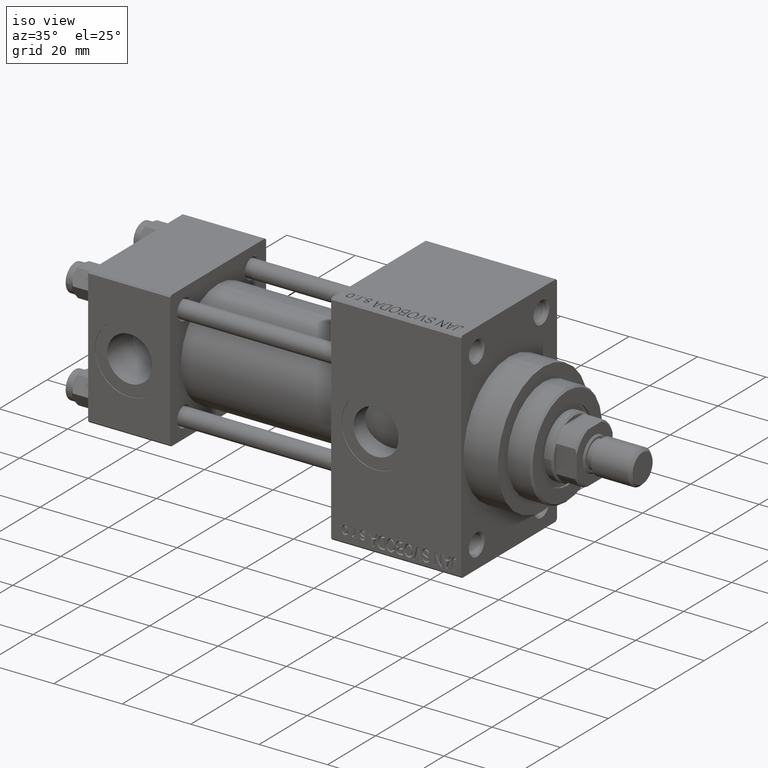
[diagram: clean part render]
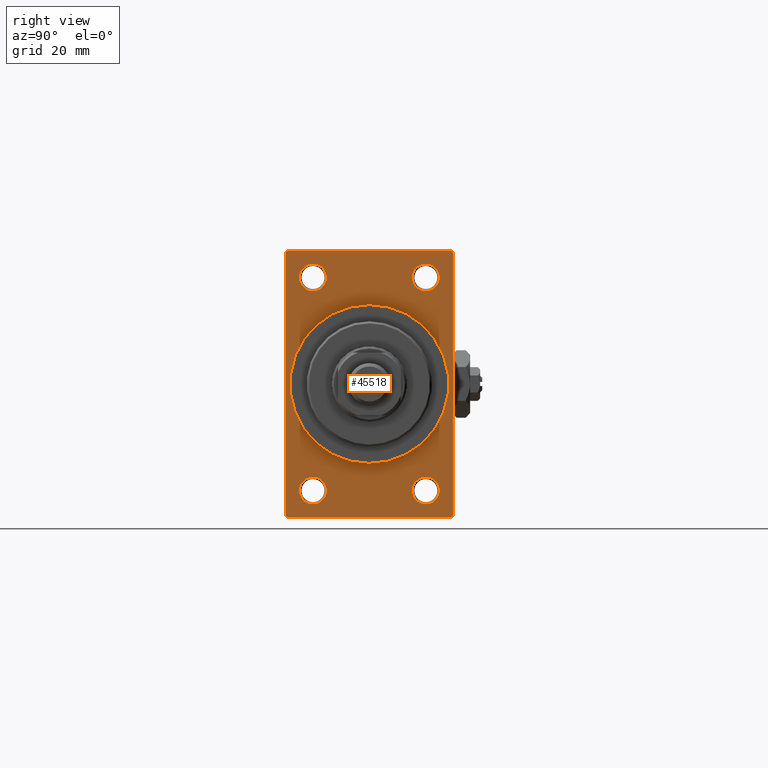
[diagram: tour spotlight — one face highlighted and labeled with its STEP entity id]
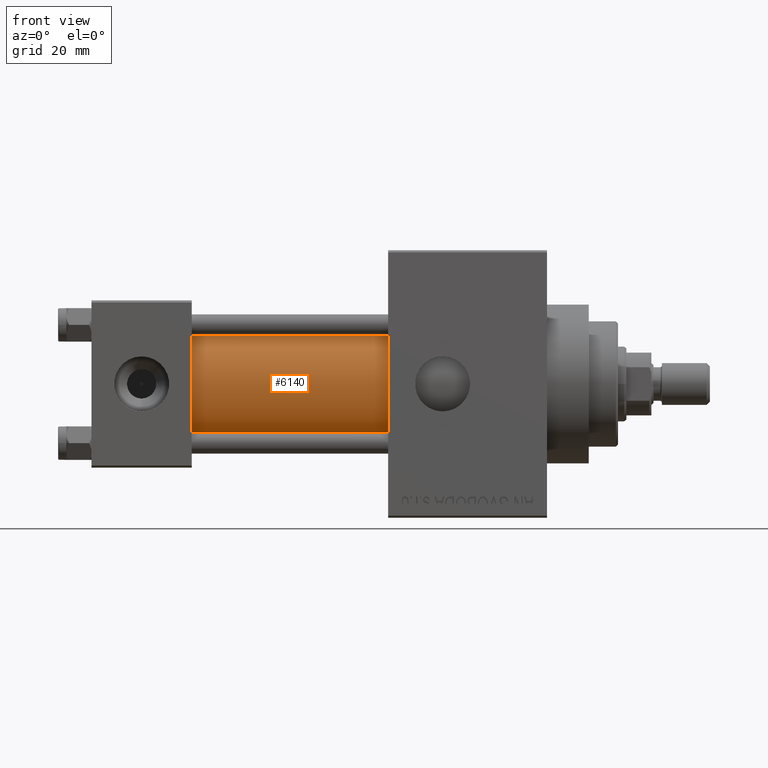
[diagram: tour spotlight — one face highlighted and labeled with its STEP entity id]
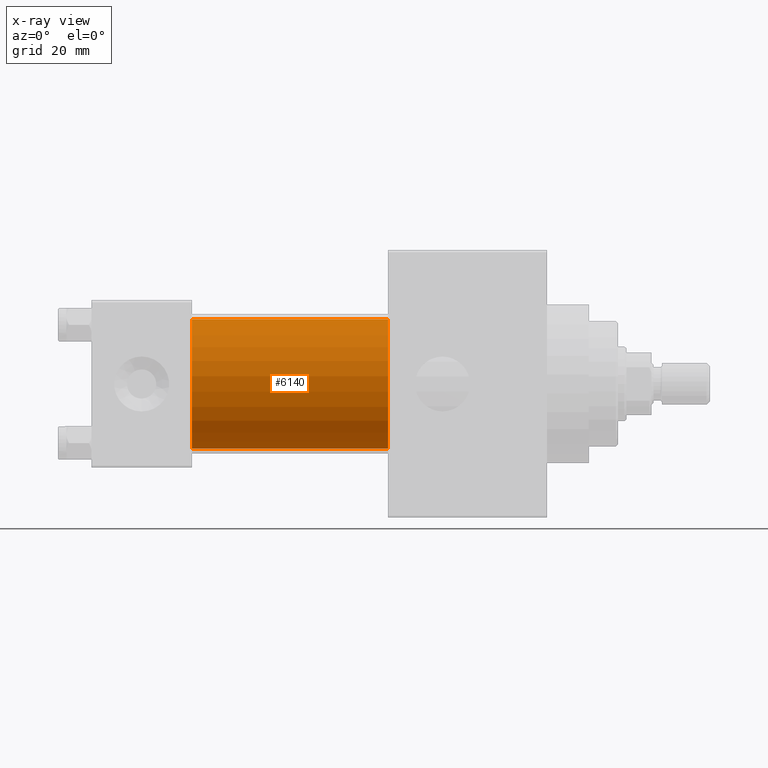
[diagram: x-ray of the same camera — body ghosted, this tour face saturated]
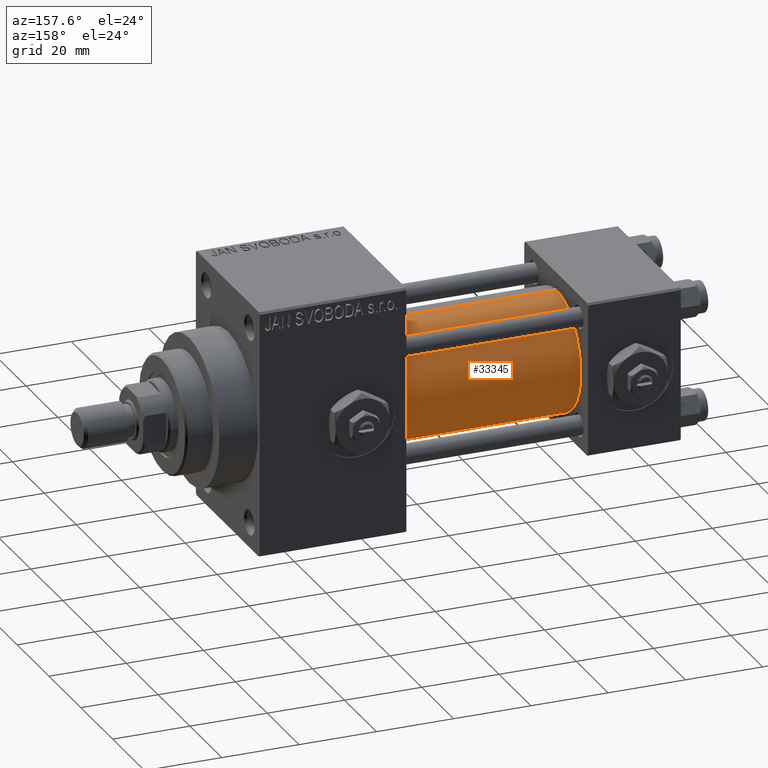
[diagram: tour spotlight — one face highlighted and labeled with its STEP entity id]
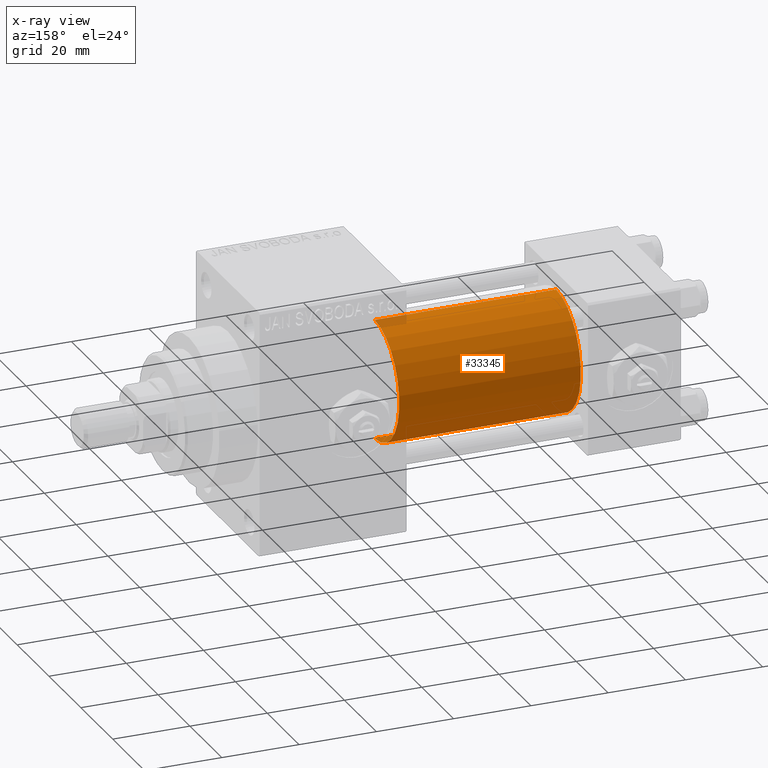
[diagram: x-ray of the same camera — body ghosted, this tour face saturated]
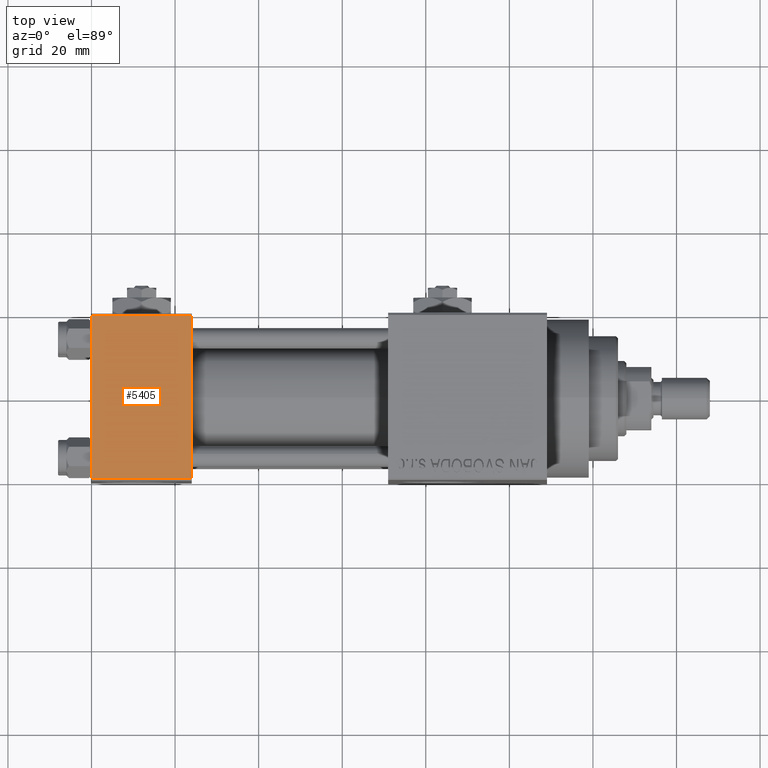
[diagram: tour spotlight — one face highlighted and labeled with its STEP entity id]
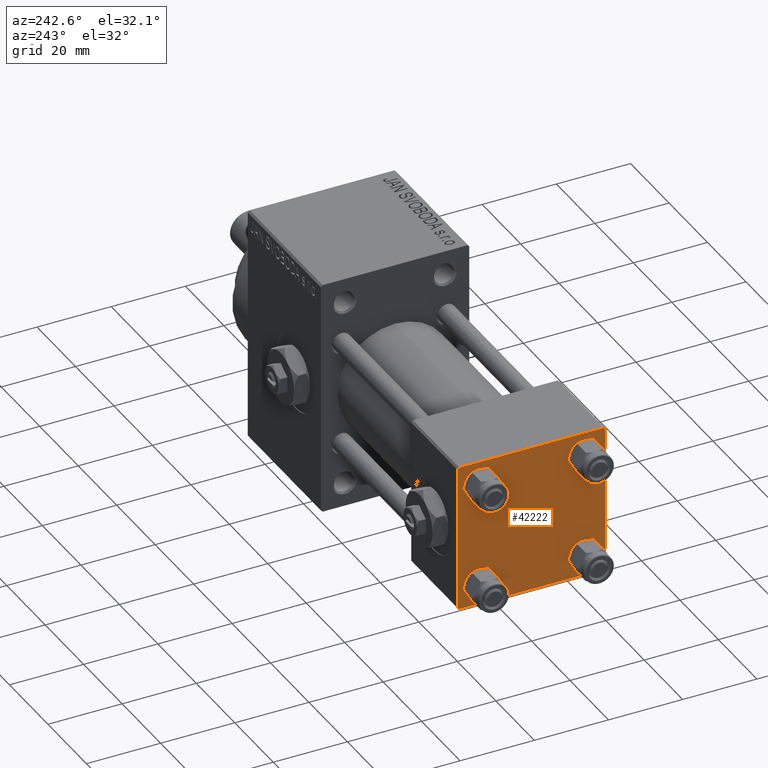
[diagram: tour spotlight — one face highlighted and labeled with its STEP entity id]
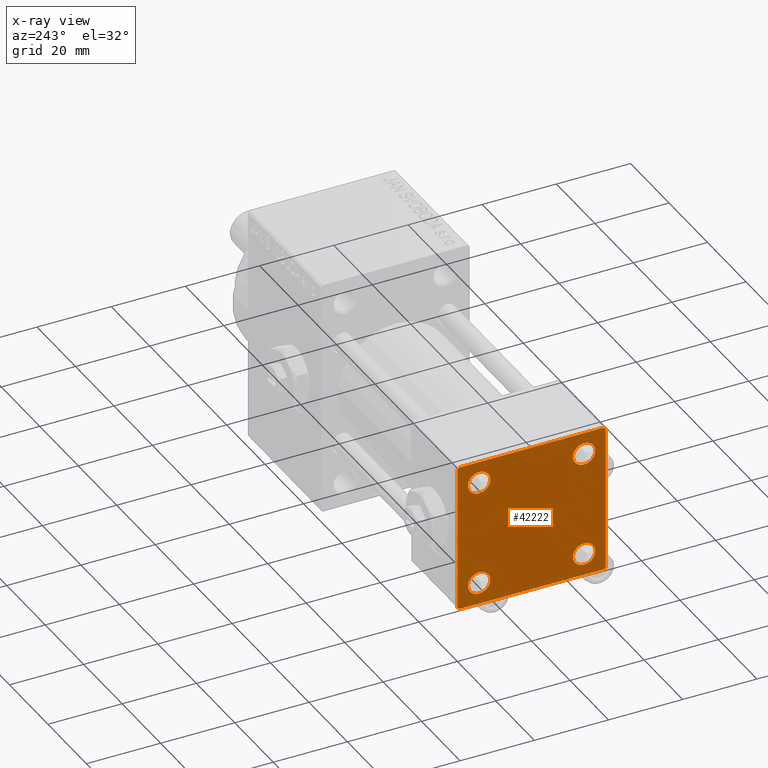
[diagram: x-ray of the same camera — body ghosted, this tour face saturated]
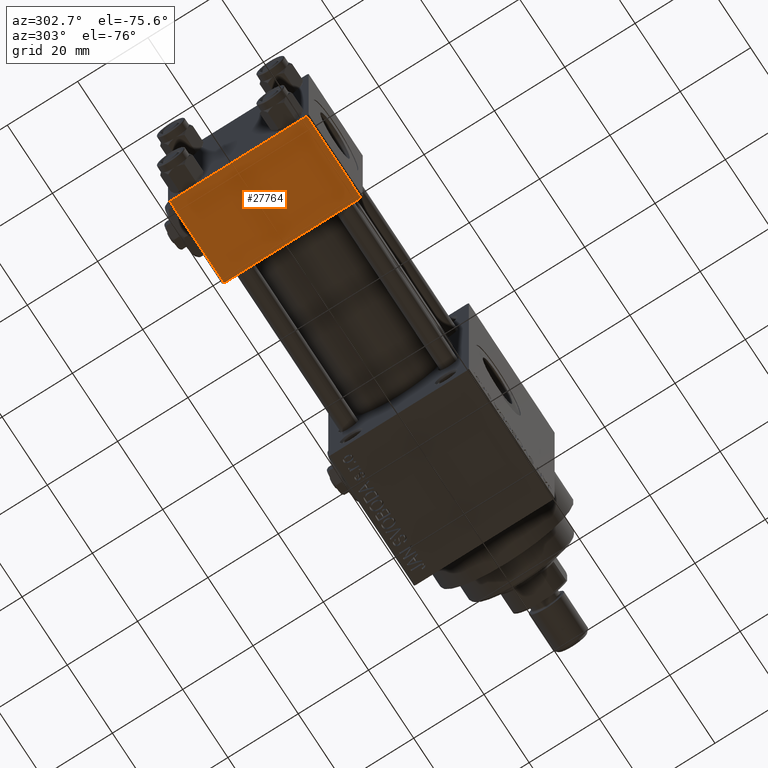
[diagram: tour spotlight — one face highlighted and labeled with its STEP entity id]
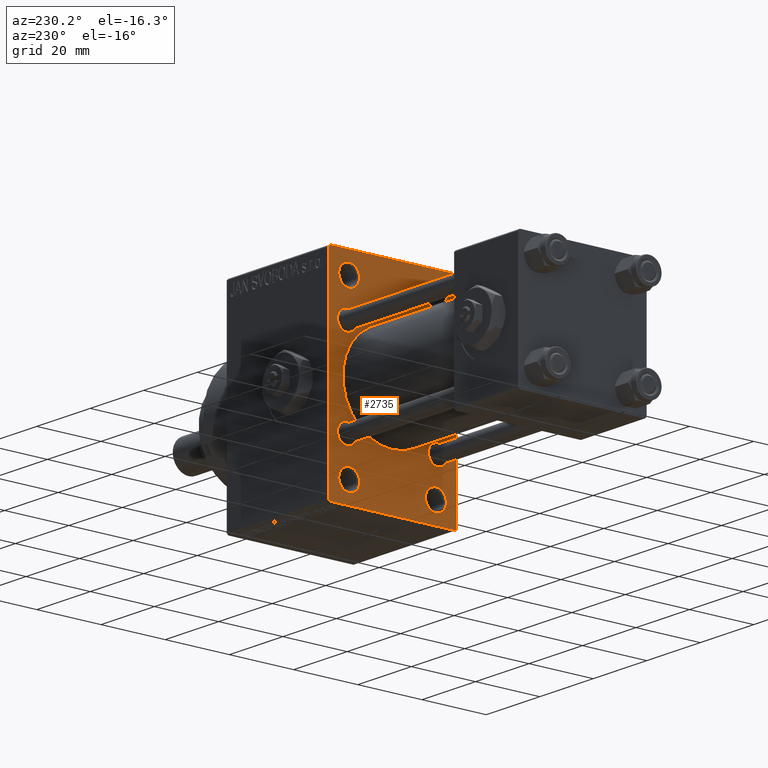
[diagram: tour spotlight — one face highlighted and labeled with its STEP entity id]
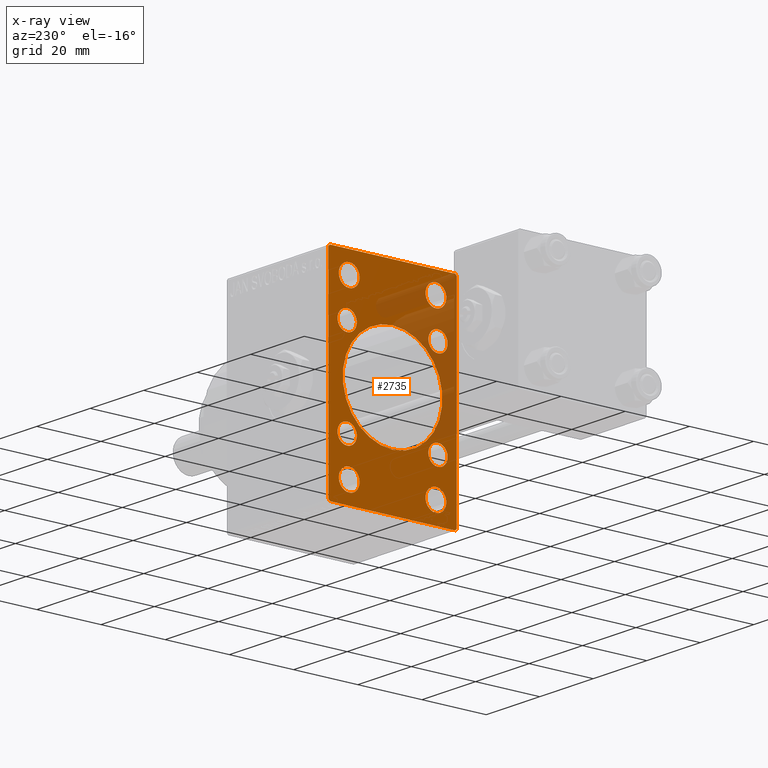
[diagram: x-ray of the same camera — body ghosted, this tour face saturated]
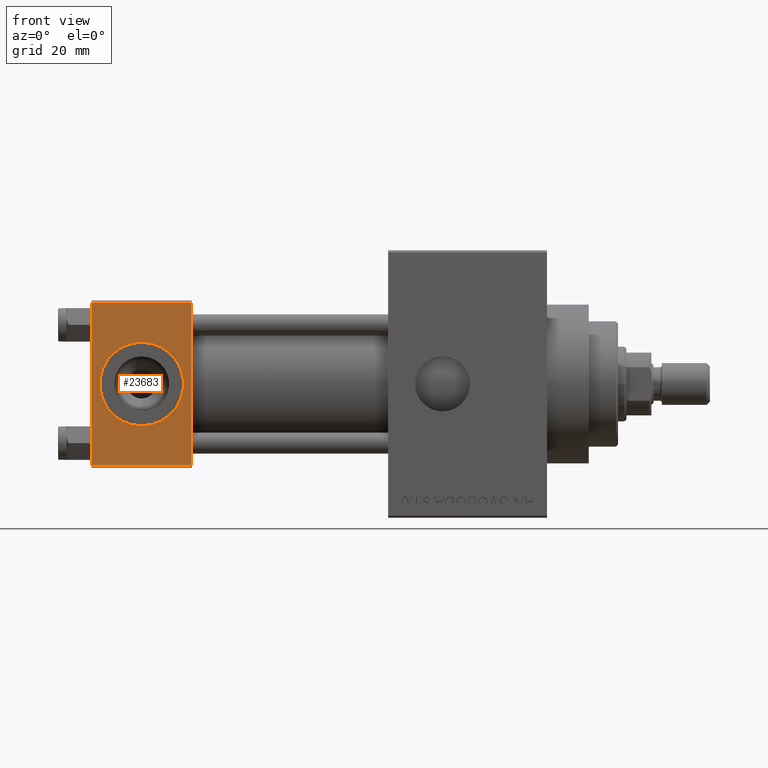
[diagram: tour spotlight — one face highlighted and labeled with its STEP entity id]
A machine part: a face-by-face anatomy tour. The part has 1213 B-rep faces; the first image is the clean iso view, then the 8 largest visible faces are spotlighted one at a time (largest first), each with its STEP entity span.

Face 1 — right view, entity #45518. In plain terms, the highlighted planar face has unit normal (-1, 0, 0).
Definition (entity closure, byte-faithful):
#569 = ORIENTED_EDGE ( 'NONE', *, *, #48865, .T. ) ;
#696 = CARTESIAN_POINT ( 'NONE',  ( 109.0000000000000142, -20.00000000000000000, -31.49999999999997868 ) ) ;
#821 = VECTOR ( 'NONE', #8152, 1000.000000000000114 ) ;
#953 = DIRECTION ( 'NONE',  ( -1.000000000000000000, -0.000000000000000000, -0.000000000000000000 ) ) ;
#962 = CARTESIAN_POINT ( 'NONE',  ( 109.0000000000000142, -13.50000000000000178, 25.50000000000000355 ) ) ;
#1061 = ORIENTED_EDGE ( 'NONE', *, *, #21942, .T. ) ;
#1163 = EDGE_CURVE ( 'NONE', #6045, #10887, #19784, .T. ) ;
#1167 = EDGE_CURVE ( 'NONE', #12117, #27539, #14925, .T. ) ;
#1853 = DIRECTION ( 'NONE',  ( 0.000000000000000000, 0.000000000000000000, 1.000000000000000000 ) ) ;
#1936 = VERTEX_POINT ( 'NONE', #47193 ) ;
#2231 = EDGE_CURVE ( 'NONE', #45431, #25584, #31776, .T. ) ;
#2245 = CIRCLE ( 'NONE', #36600, 3.250000000000002665 ) ;
#2355 = EDGE_CURVE ( 'NONE', #35578, #42868, #2245, .T. ) ;
#2838 = FACE_BOUND ( 'NONE', #5938, .T. ) ;
#3628 = AXIS2_PLACEMENT_3D ( 'NONE', #26667, #14420, #14920 ) ;
#3789 = VECTOR ( 'NONE', #45180, 1000.000000000000000 ) ;
#3879 = VERTEX_POINT ( 'NONE', #9653 ) ;
#4668 = CARTESIAN_POINT ( 'NONE',  ( 109.0000000000000142, 20.00000000000000000, -31.49999999999998579 ) ) ;
#4958 = DIRECTION ( 'NONE',  ( 0.000000000000000000, 0.000000000000000000, 1.000000000000000000 ) ) ;
#4990 = EDGE_CURVE ( 'NONE', #3879, #1936, #31103, .T. ) ;
#5463 = EDGE_CURVE ( 'NONE', #33945, #46034, #42256, .T. ) ;
#5797 = ORIENTED_EDGE ( 'NONE', *, *, #29339, .T. ) ;
#5938 = EDGE_LOOP ( 'NONE', ( #38995, #20653 ) ) ;
#5946 = DIRECTION ( 'NONE',  ( 0.000000000000000000, 0.000000000000000000, 1.000000000000000000 ) ) ;
#6045 = VERTEX_POINT ( 'NONE', #17126 ) ;
#6829 = FACE_BOUND ( 'NONE', #23998, .T. ) ;
#7007 = CARTESIAN_POINT ( 'NONE',  ( 109.0000000000000142, -19.49999999999998579, -32.00000000000000000 ) ) ;
#8070 = EDGE_CURVE ( 'NONE', #25584, #45431, #34426, .T. ) ;
#8152 = DIRECTION ( 'NONE',  ( 0.000000000000000000, -0.7071067811865474617, 0.7071067811865474617 ) ) ;
#8209 = EDGE_CURVE ( 'NONE', #10887, #6045, #13629, .T. ) ;
#8811 = DIRECTION ( 'NONE',  ( 0.000000000000000000, 0.000000000000000000, 1.000000000000000000 ) ) ;
#9443 = CARTESIAN_POINT ( 'NONE',  ( 109.0000000000000142, 13.49999999999999822, 25.50000000000000355 ) ) ;
#9653 = CARTESIAN_POINT ( 'NONE',  ( 109.0000000000000142, 13.49999999999999822, 28.74999999999996803 ) ) ;
#9995 = EDGE_LOOP ( 'NONE', ( #33008, #16960 ) ) ;
#10431 = CARTESIAN_POINT ( 'NONE',  ( 109.0000000000000142, 20.00000000000000000, 32.00000000000000000 ) ) ;
#10777 = ORIENTED_EDGE ( 'NONE', *, *, #1167, .T. ) ;
#10887 = VERTEX_POINT ( 'NONE', #23466 ) ;
#11068 = PLANE ( 'NONE',  #37106 ) ;
#11571 = EDGE_CURVE ( 'NONE', #22504, #35211, #26247, .T. ) ;
#11802 = DIRECTION ( 'NONE',  ( -1.000000000000000000, 0.000000000000000000, -0.000000000000000000 ) ) ;
#12117 = VERTEX_POINT ( 'NONE', #17947 ) ;
#12462 = CARTESIAN_POINT ( 'NONE',  ( 109.0000000000000142, 2.326828918379970970E-15, -19.00000000000000000 ) ) ;
#12656 = CARTESIAN_POINT ( 'NONE',  ( 109.0000000000000142, 20.00000000000000000, 31.49999999999998579 ) ) ;
#12945 = DIRECTION ( 'NONE',  ( 0.000000000000000000, 0.000000000000000000, 1.000000000000000000 ) ) ;
#13130 = VECTOR ( 'NONE', #33598, 1000.000000000000000 ) ;
#13629 = CIRCLE ( 'NONE', #17645, 3.250000000000002665 ) ;
#13781 = DIRECTION ( 'NONE',  ( 0.000000000000000000, 0.000000000000000000, 1.000000000000000000 ) ) ;
#14253 = ORIENTED_EDGE ( 'NONE', *, *, #8070, .T. ) ;
#14420 = DIRECTION ( 'NONE',  ( 1.000000000000000000, 0.000000000000000000, 0.000000000000000000 ) ) ;
#14555 = LINE ( 'NONE', #30065, #48172 ) ;
#14920 = DIRECTION ( 'NONE',  ( 0.000000000000000000, 0.000000000000000000, -1.000000000000000000 ) ) ;
#14925 = LINE ( 'NONE', #10431, #3789 ) ;
#15010 = AXIS2_PLACEMENT_3D ( 'NONE', #19168, #15166, #29699 ) ;
#15076 = FACE_OUTER_BOUND ( 'NONE', #36759, .T. ) ;
#15166 = DIRECTION ( 'NONE',  ( -1.000000000000000000, -0.000000000000000000, -0.000000000000000000 ) ) ;
#15237 = CIRCLE ( 'NONE', #43153, 3.249999999999961364 ) ;
#15501 = VERTEX_POINT ( 'NONE', #41650 ) ;
#15623 = CIRCLE ( 'NONE', #3628, 19.00000000000000000 ) ;
#15926 = CARTESIAN_POINT ( 'NONE',  ( 109.0000000000000142, -13.50000000000000178, 28.75000000000000355 ) ) ;
#16716 = DIRECTION ( 'NONE',  ( -1.000000000000000000, -0.000000000000000000, -0.000000000000000000 ) ) ;
#16960 = ORIENTED_EDGE ( 'NONE', *, *, #1163, .T. ) ;
#17126 = CARTESIAN_POINT ( 'NONE',  ( 109.0000000000000142, -13.50000000000000533, -22.24999999999999289 ) ) ;
#17645 = AXIS2_PLACEMENT_3D ( 'NONE', #45877, #47954, #5946 ) ;
#17947 = CARTESIAN_POINT ( 'NONE',  ( 109.0000000000000142, 19.49999999999998579, 32.00000000000000000 ) ) ;
#18169 = ORIENTED_EDGE ( 'NONE', *, *, #2355, .T. ) ;
#18238 = EDGE_CURVE ( 'NONE', #42868, #35578, #46607, .T. ) ;
#18778 = DIRECTION ( 'NONE',  ( 0.000000000000000000, 0.7071067811865426878, -0.7071067811865524577 ) ) ;
#18837 = LINE ( 'NONE', #42298, #13130 ) ;
#19113 = AXIS2_PLACEMENT_3D ( 'NONE', #47846, #29121, #1853 ) ;
#19168 = CARTESIAN_POINT ( 'NONE',  ( 109.0000000000000142, -13.50000000000000533, -25.49999999999999645 ) ) ;
#19323 = DIRECTION ( 'NONE',  ( -0.000000000000000000, 0.000000000000000000, 1.000000000000000000 ) ) ;
#19497 = AXIS2_PLACEMENT_3D ( 'NONE', #37046, #48027, #13781 ) ;
#19784 = CIRCLE ( 'NONE', #15010, 3.250000000000002665 ) ;
#19907 = EDGE_CURVE ( 'NONE', #46034, #33945, #15623, .T. ) ;
#20653 = ORIENTED_EDGE ( 'NONE', *, *, #4990, .T. ) ;
#20705 = AXIS2_PLACEMENT_3D ( 'NONE', #22734, #48549, #25810 ) ;
#21158 = FACE_BOUND ( 'NONE', #9995, .T. ) ;
#21370 = VECTOR ( 'NONE', #18778, 1000.000000000000000 ) ;
#21856 = VECTOR ( 'NONE', #39995, 1000.000000000000000 ) ;
#21942 = EDGE_CURVE ( 'NONE', #49357, #15501, #45757, .T. ) ;
#22168 = ORIENTED_EDGE ( 'NONE', *, *, #2231, .T. ) ;
#22504 = VERTEX_POINT ( 'NONE', #12656 ) ;
#22693 = CARTESIAN_POINT ( 'NONE',  ( 109.0000000000000142, 19.49999999999998579, 32.00000000000000000 ) ) ;
#22734 = CARTESIAN_POINT ( 'NONE',  ( 109.0000000000000142, 0.000000000000000000, 0.000000000000000000 ) ) ;
#23397 = DIRECTION ( 'NONE',  ( -1.000000000000000000, -0.000000000000000000, -0.000000000000000000 ) ) ;
#23466 = CARTESIAN_POINT ( 'NONE',  ( 109.0000000000000142, -13.50000000000000533, -28.74999999999999645 ) ) ;
#23998 = EDGE_LOOP ( 'NONE', ( #18169, #35545 ) ) ;
#24076 = EDGE_LOOP ( 'NONE', ( #46489, #43243 ) ) ;
#24992 = VERTEX_POINT ( 'NONE', #30775 ) ;
#25584 = VERTEX_POINT ( 'NONE', #42378 ) ;
#25810 = DIRECTION ( 'NONE',  ( 0.000000000000000000, 0.000000000000000000, -1.000000000000000000 ) ) ;
#26247 = LINE ( 'NONE', #27226, #27972 ) ;
#26667 = CARTESIAN_POINT ( 'NONE',  ( 109.0000000000000142, 0.000000000000000000, 0.000000000000000000 ) ) ;
#27032 = EDGE_LOOP ( 'NONE', ( #14253, #22168 ) ) ;
#27199 = AXIS2_PLACEMENT_3D ( 'NONE', #962, #16716, #4958 ) ;
#27226 = CARTESIAN_POINT ( 'NONE',  ( 109.0000000000000142, 20.00000000000000000, 32.00000000000000000 ) ) ;
#27539 = VERTEX_POINT ( 'NONE', #39368 ) ;
#27972 = VECTOR ( 'NONE', #45982, 1000.000000000000000 ) ;
#29121 = DIRECTION ( 'NONE',  ( -1.000000000000000000, -0.000000000000000000, -0.000000000000000000 ) ) ;
#29339 = EDGE_CURVE ( 'NONE', #22504, #12117, #46163, .T. ) ;
#29699 = DIRECTION ( 'NONE',  ( 0.000000000000000000, 0.000000000000000000, 1.000000000000000000 ) ) ;
#30065 = CARTESIAN_POINT ( 'NONE',  ( 109.0000000000000142, -20.00000000000000000, 31.49999999999997868 ) ) ;
#30214 = EDGE_CURVE ( 'NONE', #1936, #3879, #15237, .T. ) ;
#30334 = CARTESIAN_POINT ( 'NONE',  ( 109.0000000000000142, 0.000000000000000000, 0.000000000000000000 ) ) ;
#30775 = CARTESIAN_POINT ( 'NONE',  ( 109.0000000000000142, 19.49999999999998579, -32.00000000000000000 ) ) ;
#31103 = CIRCLE ( 'NONE', #19113, 3.249999999999961364 ) ;
#31531 = CARTESIAN_POINT ( 'NONE',  ( 109.0000000000000142, 20.00000000000000000, -32.00000000000000000 ) ) ;
#31717 = ORIENTED_EDGE ( 'NONE', *, *, #45561, .T. ) ;
#31776 = CIRCLE ( 'NONE', #43756, 3.250000000000002665 ) ;
#33008 = ORIENTED_EDGE ( 'NONE', *, *, #8209, .T. ) ;
#33355 = FACE_BOUND ( 'NONE', #24076, .T. ) ;
#33431 = CARTESIAN_POINT ( 'NONE',  ( 109.0000000000000142, -20.00000000000000000, 31.49999999999997868 ) ) ;
#33598 = DIRECTION ( 'NONE',  ( 0.000000000000000000, 0.000000000000000000, -1.000000000000000000 ) ) ;
#33945 = VERTEX_POINT ( 'NONE', #47231 ) ;
#34426 = CIRCLE ( 'NONE', #27199, 3.250000000000002665 ) ;
#35211 = VERTEX_POINT ( 'NONE', #4668 ) ;
#35334 = CARTESIAN_POINT ( 'NONE',  ( 109.0000000000000142, 13.49999999999999822, -25.50000000000000000 ) ) ;
#35545 = ORIENTED_EDGE ( 'NONE', *, *, #18238, .T. ) ;
#35578 = VERTEX_POINT ( 'NONE', #47601 ) ;
#36562 = DIRECTION ( 'NONE',  ( -0.000000000000000000, -0.7071067811865474617, -0.7071067811865474617 ) ) ;
#36600 = AXIS2_PLACEMENT_3D ( 'NONE', #35334, #42830, #8811 ) ;
#36759 = EDGE_LOOP ( 'NONE', ( #31717, #1061, #41017, #37522, #37796, #5797, #10777, #569 ) ) ;
#37046 = CARTESIAN_POINT ( 'NONE',  ( 109.0000000000000142, 13.49999999999999822, -25.50000000000000000 ) ) ;
#37106 = AXIS2_PLACEMENT_3D ( 'NONE', #30334, #11802, #19323 ) ;
#37522 = ORIENTED_EDGE ( 'NONE', *, *, #49101, .T. ) ;
#37796 = ORIENTED_EDGE ( 'NONE', *, *, #11571, .F. ) ;
#38608 = VECTOR ( 'NONE', #39251, 1000.000000000000114 ) ;
#38906 = VERTEX_POINT ( 'NONE', #33431 ) ;
#38995 = ORIENTED_EDGE ( 'NONE', *, *, #30214, .T. ) ;
#39251 = DIRECTION ( 'NONE',  ( -0.000000000000000000, 0.7071067811865474617, 0.7071067811865474617 ) ) ;
#39368 = CARTESIAN_POINT ( 'NONE',  ( 109.0000000000000142, -19.49999999999998579, 31.99999999999999289 ) ) ;
#39626 = DIRECTION ( 'NONE',  ( 0.000000000000000000, 0.000000000000000000, 1.000000000000000000 ) ) ;
#39744 = CARTESIAN_POINT ( 'NONE',  ( 109.0000000000000142, 20.00000000000000000, -31.49999999999998579 ) ) ;
#39995 = DIRECTION ( 'NONE',  ( 0.000000000000000000, -1.000000000000000000, 0.000000000000000000 ) ) ;
#41017 = ORIENTED_EDGE ( 'NONE', *, *, #49099, .F. ) ;
#41650 = CARTESIAN_POINT ( 'NONE',  ( 109.0000000000000142, -19.49999999999998579, -32.00000000000000000 ) ) ;
#41925 = CARTESIAN_POINT ( 'NONE',  ( 109.0000000000000142, 13.49999999999999822, -22.24999999999999645 ) ) ;
#42256 = CIRCLE ( 'NONE', #20705, 19.00000000000000000 ) ;
#42298 = CARTESIAN_POINT ( 'NONE',  ( 109.0000000000000142, -20.00000000000000000, 31.99999999999999289 ) ) ;
#42378 = CARTESIAN_POINT ( 'NONE',  ( 109.0000000000000142, -13.50000000000000178, 22.25000000000000000 ) ) ;
#42400 = CARTESIAN_POINT ( 'NONE',  ( 109.0000000000000142, -13.50000000000000178, 25.50000000000000355 ) ) ;
#42830 = DIRECTION ( 'NONE',  ( -1.000000000000000000, -0.000000000000000000, -0.000000000000000000 ) ) ;
#42868 = VERTEX_POINT ( 'NONE', #41925 ) ;
#43153 = AXIS2_PLACEMENT_3D ( 'NONE', #9443, #953, #12945 ) ;
#43243 = ORIENTED_EDGE ( 'NONE', *, *, #19907, .F. ) ;
#43502 = LINE ( 'NONE', #31531, #21856 ) ;
#43756 = AXIS2_PLACEMENT_3D ( 'NONE', #42400, #23397, #39626 ) ;
#43894 = FACE_BOUND ( 'NONE', #27032, .T. ) ;
#45180 = DIRECTION ( 'NONE',  ( 0.000000000000000000, -1.000000000000000000, -1.734723475976807094E-16 ) ) ;
#45431 = VERTEX_POINT ( 'NONE', #15926 ) ;
#45518 = ADVANCED_FACE ( 'NONE', ( #43894, #21158, #6829, #2838, #33355, #15076 ), #11068, .F. ) ;
#45561 = EDGE_CURVE ( 'NONE', #38906, #49357, #18837, .T. ) ;
#45757 = LINE ( 'NONE', #7007, #21370 ) ;
#45877 = CARTESIAN_POINT ( 'NONE',  ( 109.0000000000000142, -13.50000000000000533, -25.49999999999999645 ) ) ;
#45982 = DIRECTION ( 'NONE',  ( 0.000000000000000000, 0.000000000000000000, -1.000000000000000000 ) ) ;
#46034 = VERTEX_POINT ( 'NONE', #12462 ) ;
#46163 = LINE ( 'NONE', #22693, #821 ) ;
#46489 = ORIENTED_EDGE ( 'NONE', *, *, #5463, .F. ) ;
#46607 = CIRCLE ( 'NONE', #19497, 3.250000000000002665 ) ;
#47193 = CARTESIAN_POINT ( 'NONE',  ( 109.0000000000000142, 13.49999999999999822, 22.25000000000004263 ) ) ;
#47231 = CARTESIAN_POINT ( 'NONE',  ( 109.0000000000000142, 0.000000000000000000, 19.00000000000000000 ) ) ;
#47251 = LINE ( 'NONE', #39744, #38608 ) ;
#47601 = CARTESIAN_POINT ( 'NONE',  ( 109.0000000000000142, 13.49999999999999822, -28.75000000000000000 ) ) ;
#47846 = CARTESIAN_POINT ( 'NONE',  ( 109.0000000000000142, 13.49999999999999822, 25.50000000000000355 ) ) ;
#47954 = DIRECTION ( 'NONE',  ( -1.000000000000000000, -0.000000000000000000, -0.000000000000000000 ) ) ;
#48027 = DIRECTION ( 'NONE',  ( -1.000000000000000000, -0.000000000000000000, -0.000000000000000000 ) ) ;
#48172 = VECTOR ( 'NONE', #36562, 1000.000000000000114 ) ;
#48549 = DIRECTION ( 'NONE',  ( 1.000000000000000000, 0.000000000000000000, 0.000000000000000000 ) ) ;
#48865 = EDGE_CURVE ( 'NONE', #27539, #38906, #14555, .T. ) ;
#49099 = EDGE_CURVE ( 'NONE', #24992, #15501, #43502, .T. ) ;
#49101 = EDGE_CURVE ( 'NONE', #24992, #35211, #47251, .T. ) ;
#49357 = VERTEX_POINT ( 'NONE', #696 ) ;

Face 2 — front view, entity #6140. An x-ray twin of the same camera follows (body ghosted, this face saturated) — the face is partly hidden behind the body. In plain terms, the highlighted cylindrical surface (partial cylindrical patch) has radius 15.5 mm, axis along (-1, -0, -0).
Definition (entity closure, byte-faithful):
#3764 = ORIENTED_EDGE ( 'NONE', *, *, #20922, .T. ) ;
#6140 = ADVANCED_FACE ( 'NONE', ( #33136 ), #29383, .T. ) ;
#6496 = ORIENTED_EDGE ( 'NONE', *, *, #30769, .F. ) ;
#6653 = EDGE_CURVE ( 'NONE', #7439, #20294, #31982, .T. ) ;
#7367 = CARTESIAN_POINT ( 'NONE',  ( 71.00000000000001421, -7.038826752868131828E-16, -15.50000000000000000 ) ) ;
#7439 = VERTEX_POINT ( 'NONE', #37575 ) ;
#7595 = DIRECTION ( 'NONE',  ( -1.000000000000000000, -0.000000000000000000, -0.000000000000000000 ) ) ;
#11056 = CARTESIAN_POINT ( 'NONE',  ( 71.00000000000001421, -2.602085213965210642E-15, 0.000000000000000000 ) ) ;
#11800 = CARTESIAN_POINT ( 'NONE',  ( 24.00000000000000000, -7.038826752868131828E-16, -15.50000000000000000 ) ) ;
#13090 = CARTESIAN_POINT ( 'NONE',  ( 24.00000000000000000, -2.602085213965210642E-15, 15.50000000000000000 ) ) ;
#14011 = ORIENTED_EDGE ( 'NONE', *, *, #44911, .T. ) ;
#14824 = DIRECTION ( 'NONE',  ( 0.000000000000000000, 0.000000000000000000, 1.000000000000000000 ) ) ;
#15540 = CARTESIAN_POINT ( 'NONE',  ( 71.00000000000001421, -7.038826752868131828E-16, -15.50000000000000000 ) ) ;
#15620 = DIRECTION ( 'NONE',  ( -1.000000000000000000, -0.000000000000000000, -0.000000000000000000 ) ) ;
#15733 = CIRCLE ( 'NONE', #22141, 15.50000000000000000 ) ;
#20294 = VERTEX_POINT ( 'NONE', #15540 ) ;
#20922 = EDGE_CURVE ( 'NONE', #22864, #23866, #15733, .T. ) ;
#22130 = CARTESIAN_POINT ( 'NONE',  ( 71.00000000000001421, -2.602085213965210642E-15, 0.000000000000000000 ) ) ;
#22141 = AXIS2_PLACEMENT_3D ( 'NONE', #49063, #34567, #14824 ) ;
#22864 = VERTEX_POINT ( 'NONE', #13090 ) ;
#23866 = VERTEX_POINT ( 'NONE', #11800 ) ;
#24028 = VECTOR ( 'NONE', #15620, 1000.000000000000000 ) ;
#24507 = EDGE_LOOP ( 'NONE', ( #6496, #41250, #14011, #3764 ) ) ;
#26312 = DIRECTION ( 'NONE',  ( 1.000000000000000000, 0.000000000000000000, 0.000000000000000000 ) ) ;
#27163 = AXIS2_PLACEMENT_3D ( 'NONE', #11056, #26312, #36580 ) ;
#29383 = CYLINDRICAL_SURFACE ( 'NONE', #40727, 15.50000000000000000 ) ;
#30769 = EDGE_CURVE ( 'NONE', #20294, #23866, #45380, .T. ) ;
#31982 = CIRCLE ( 'NONE', #27163, 15.50000000000000000 ) ;
#33136 = FACE_OUTER_BOUND ( 'NONE', #24507, .T. ) ;
#34024 = DIRECTION ( 'NONE',  ( -1.000000000000000000, -0.000000000000000000, -0.000000000000000000 ) ) ;
#34263 = LINE ( 'NONE', #44772, #45873 ) ;
#34567 = DIRECTION ( 'NONE',  ( 1.000000000000000000, 0.000000000000000000, 0.000000000000000000 ) ) ;
#36580 = DIRECTION ( 'NONE',  ( 0.000000000000000000, 0.000000000000000000, -1.000000000000000000 ) ) ;
#37371 = DIRECTION ( 'NONE',  ( 0.000000000000000000, 0.000000000000000000, 1.000000000000000000 ) ) ;
#37575 = CARTESIAN_POINT ( 'NONE',  ( 71.00000000000001421, -2.602085213965210642E-15, 15.50000000000000000 ) ) ;
#40727 = AXIS2_PLACEMENT_3D ( 'NONE', #22130, #7595, #37371 ) ;
#41250 = ORIENTED_EDGE ( 'NONE', *, *, #6653, .F. ) ;
#44772 = CARTESIAN_POINT ( 'NONE',  ( 71.00000000000001421, -2.602085213965210642E-15, 15.50000000000000000 ) ) ;
#44911 = EDGE_CURVE ( 'NONE', #7439, #22864, #34263, .T. ) ;
#45380 = LINE ( 'NONE', #7367, #24028 ) ;
#45873 = VECTOR ( 'NONE', #34024, 1000.000000000000000 ) ;
#49063 = CARTESIAN_POINT ( 'NONE',  ( 24.00000000000000000, -2.602085213965210642E-15, 0.000000000000000000 ) ) ;

Face 3 — auxiliary view, entity #33345. An x-ray twin of the same camera follows (body ghosted, this face saturated) — the face is partly hidden behind the body. In plain terms, the highlighted cylindrical surface (partial cylindrical patch) has radius 15.5 mm, axis along (-1, -0, -0).
Definition (entity closure, byte-faithful):
#487 = EDGE_CURVE ( 'NONE', #20294, #7439, #47679, .T. ) ;
#793 = DIRECTION ( 'NONE',  ( -1.000000000000000000, -0.000000000000000000, -0.000000000000000000 ) ) ;
#1351 = AXIS2_PLACEMENT_3D ( 'NONE', #36406, #44145, #47638 ) ;
#2101 = ORIENTED_EDGE ( 'NONE', *, *, #49181, .T. ) ;
#2675 = CIRCLE ( 'NONE', #5827, 15.50000000000000000 ) ;
#5827 = AXIS2_PLACEMENT_3D ( 'NONE', #19478, #49467, #23217 ) ;
#7367 = CARTESIAN_POINT ( 'NONE',  ( 71.00000000000001421, -7.038826752868131828E-16, -15.50000000000000000 ) ) ;
#7439 = VERTEX_POINT ( 'NONE', #37575 ) ;
#11800 = CARTESIAN_POINT ( 'NONE',  ( 24.00000000000000000, -7.038826752868131828E-16, -15.50000000000000000 ) ) ;
#12055 = CARTESIAN_POINT ( 'NONE',  ( 71.00000000000001421, -2.602085213965210642E-15, 0.000000000000000000 ) ) ;
#13090 = CARTESIAN_POINT ( 'NONE',  ( 24.00000000000000000, -2.602085213965210642E-15, 15.50000000000000000 ) ) ;
#13397 = EDGE_LOOP ( 'NONE', ( #46062, #14429, #2101, #30915 ) ) ;
#14429 = ORIENTED_EDGE ( 'NONE', *, *, #30769, .T. ) ;
#15540 = CARTESIAN_POINT ( 'NONE',  ( 71.00000000000001421, -7.038826752868131828E-16, -15.50000000000000000 ) ) ;
#15620 = DIRECTION ( 'NONE',  ( -1.000000000000000000, -0.000000000000000000, -0.000000000000000000 ) ) ;
#19478 = CARTESIAN_POINT ( 'NONE',  ( 24.00000000000000000, -2.602085213965210642E-15, 0.000000000000000000 ) ) ;
#20294 = VERTEX_POINT ( 'NONE', #15540 ) ;
#22864 = VERTEX_POINT ( 'NONE', #13090 ) ;
#23217 = DIRECTION ( 'NONE',  ( 0.000000000000000000, 0.000000000000000000, 1.000000000000000000 ) ) ;
#23312 = FACE_OUTER_BOUND ( 'NONE', #13397, .T. ) ;
#23866 = VERTEX_POINT ( 'NONE', #11800 ) ;
#24028 = VECTOR ( 'NONE', #15620, 1000.000000000000000 ) ;
#30592 = DIRECTION ( 'NONE',  ( 0.000000000000000000, 0.000000000000000000, 1.000000000000000000 ) ) ;
#30769 = EDGE_CURVE ( 'NONE', #20294, #23866, #45380, .T. ) ;
#30915 = ORIENTED_EDGE ( 'NONE', *, *, #44911, .F. ) ;
#33345 = ADVANCED_FACE ( 'NONE', ( #23312 ), #38075, .T. ) ;
#34024 = DIRECTION ( 'NONE',  ( -1.000000000000000000, -0.000000000000000000, -0.000000000000000000 ) ) ;
#34263 = LINE ( 'NONE', #44772, #45873 ) ;
#36406 = CARTESIAN_POINT ( 'NONE',  ( 71.00000000000001421, -2.602085213965210642E-15, 0.000000000000000000 ) ) ;
#37575 = CARTESIAN_POINT ( 'NONE',  ( 71.00000000000001421, -2.602085213965210642E-15, 15.50000000000000000 ) ) ;
#38075 = CYLINDRICAL_SURFACE ( 'NONE', #39941, 15.50000000000000000 ) ;
#39941 = AXIS2_PLACEMENT_3D ( 'NONE', #12055, #793, #30592 ) ;
#44145 = DIRECTION ( 'NONE',  ( 1.000000000000000000, 0.000000000000000000, 0.000000000000000000 ) ) ;
#44772 = CARTESIAN_POINT ( 'NONE',  ( 71.00000000000001421, -2.602085213965210642E-15, 15.50000000000000000 ) ) ;
#44911 = EDGE_CURVE ( 'NONE', #7439, #22864, #34263, .T. ) ;
#45380 = LINE ( 'NONE', #7367, #24028 ) ;
#45873 = VECTOR ( 'NONE', #34024, 1000.000000000000000 ) ;
#46062 = ORIENTED_EDGE ( 'NONE', *, *, #487, .F. ) ;
#47638 = DIRECTION ( 'NONE',  ( 0.000000000000000000, 0.000000000000000000, -1.000000000000000000 ) ) ;
#47679 = CIRCLE ( 'NONE', #1351, 15.50000000000000000 ) ;
#49181 = EDGE_CURVE ( 'NONE', #23866, #22864, #2675, .T. ) ;
#49467 = DIRECTION ( 'NONE',  ( 1.000000000000000000, 0.000000000000000000, 0.000000000000000000 ) ) ;

Face 4 — top view, entity #5405. In plain terms, the highlighted planar face has unit normal (0, 0, -1).
Definition (entity closure, byte-faithful):
#531 = EDGE_LOOP ( 'NONE', ( #43700, #20749, #19770, #7180 ) ) ;
#5405 = ADVANCED_FACE ( 'NONE', ( #44553 ), #14058, .F. ) ;
#6816 = EDGE_CURVE ( 'NONE', #48887, #33351, #32463, .T. ) ;
#7180 = ORIENTED_EDGE ( 'NONE', *, *, #48472, .T. ) ;
#8277 = CARTESIAN_POINT ( 'NONE',  ( 24.00000000000000000, 20.00000000000000000, 20.00000000000000000 ) ) ;
#8727 = AXIS2_PLACEMENT_3D ( 'NONE', #38216, #15477, #10300 ) ;
#8838 = CARTESIAN_POINT ( 'NONE',  ( 0.000000000000000000, 19.50000000000000000, 20.00000000000000000 ) ) ;
#9562 = EDGE_CURVE ( 'NONE', #14904, #48887, #38034, .T. ) ;
#9592 = VECTOR ( 'NONE', #24954, 1000.000000000000000 ) ;
#10300 = DIRECTION ( 'NONE',  ( 0.000000000000000000, 1.000000000000000000, 2.602085213965210149E-16 ) ) ;
#10434 = VERTEX_POINT ( 'NONE', #38775 ) ;
#13664 = VECTOR ( 'NONE', #15537, 1000.000000000000000 ) ;
#14058 = PLANE ( 'NONE',  #8727 ) ;
#14904 = VERTEX_POINT ( 'NONE', #47036 ) ;
#15477 = DIRECTION ( 'NONE',  ( 0.000000000000000000, 2.602085213965210149E-16, -1.000000000000000000 ) ) ;
#15537 = DIRECTION ( 'NONE',  ( 0.000000000000000000, -1.000000000000000000, -2.602085213965210149E-16 ) ) ;
#15789 = LINE ( 'NONE', #8277, #39945 ) ;
#16057 = CARTESIAN_POINT ( 'NONE',  ( 24.00000000000000000, -19.49999999999999289, 19.99999999999998934 ) ) ;
#19770 = ORIENTED_EDGE ( 'NONE', *, *, #28601, .F. ) ;
#20749 = ORIENTED_EDGE ( 'NONE', *, *, #6816, .T. ) ;
#24954 = DIRECTION ( 'NONE',  ( 1.000000000000000000, 0.000000000000000000, 0.000000000000000000 ) ) ;
#28601 = EDGE_CURVE ( 'NONE', #10434, #33351, #15789, .T. ) ;
#29069 = CARTESIAN_POINT ( 'NONE',  ( 0.000000000000000000, -19.49999999999999289, 19.99999999999998934 ) ) ;
#32463 = LINE ( 'NONE', #36213, #9592 ) ;
#33351 = VERTEX_POINT ( 'NONE', #16057 ) ;
#34293 = CARTESIAN_POINT ( 'NONE',  ( 0.000000000000000000, 20.00000000000000000, 20.00000000000000000 ) ) ;
#35856 = DIRECTION ( 'NONE',  ( -1.000000000000000000, 0.000000000000000000, 0.000000000000000000 ) ) ;
#36213 = CARTESIAN_POINT ( 'NONE',  ( 24.00000000000000000, -19.49999999999999289, 19.99999999999998934 ) ) ;
#38034 = LINE ( 'NONE', #34293, #13664 ) ;
#38216 = CARTESIAN_POINT ( 'NONE',  ( 24.00000000000000000, 20.00000000000000000, 20.00000000000000000 ) ) ;
#38775 = CARTESIAN_POINT ( 'NONE',  ( 24.00000000000000000, 19.50000000000000000, 20.00000000000000000 ) ) ;
#39945 = VECTOR ( 'NONE', #42283, 1000.000000000000000 ) ;
#42283 = DIRECTION ( 'NONE',  ( 0.000000000000000000, -1.000000000000000000, -2.602085213965210149E-16 ) ) ;
#43700 = ORIENTED_EDGE ( 'NONE', *, *, #9562, .T. ) ;
#44553 = FACE_OUTER_BOUND ( 'NONE', #531, .T. ) ;
#46857 = LINE ( 'NONE', #8838, #48965 ) ;
#47036 = CARTESIAN_POINT ( 'NONE',  ( 0.000000000000000000, 19.50000000000000000, 20.00000000000000000 ) ) ;
#48472 = EDGE_CURVE ( 'NONE', #10434, #14904, #46857, .T. ) ;
#48887 = VERTEX_POINT ( 'NONE', #29069 ) ;
#48965 = VECTOR ( 'NONE', #35856, 1000.000000000000000 ) ;

Face 5 — auxiliary view, entity #42222. An x-ray twin of the same camera follows (body ghosted, this face saturated) — the face is partly hidden behind the body. In plain terms, the highlighted planar face has unit normal (-1, 0, 0).
Definition (entity closure, byte-faithful):
#407 = CARTESIAN_POINT ( 'NONE',  ( 0.000000000000000000, 20.00000000000000000, -19.50000000000002132 ) ) ;
#1009 = CIRCLE ( 'NONE', #24180, 2.999999999999983569 ) ;
#1524 = CARTESIAN_POINT ( 'NONE',  ( 0.000000000000000000, -14.14999999999999503, -14.15000000000000391 ) ) ;
#1584 = CARTESIAN_POINT ( 'NONE',  ( 0.000000000000000000, 20.00000000000000000, -20.00000000000000711 ) ) ;
#1591 = CIRCLE ( 'NONE', #40764, 2.999999999999983569 ) ;
#1959 = VERTEX_POINT ( 'NONE', #43192 ) ;
#3156 = CARTESIAN_POINT ( 'NONE',  ( 0.000000000000000000, -14.14999999999999503, -11.15000000000000036 ) ) ;
#4243 = DIRECTION ( 'NONE',  ( -0.000000000000000000, -0.7071067811865524577, -0.7071067811865426878 ) ) ;
#5146 = CARTESIAN_POINT ( 'NONE',  ( -0.000000000000000000, 19.75000000000013500, 19.74999999999986144 ) ) ;
#5936 = CARTESIAN_POINT ( 'NONE',  ( 0.000000000000000000, 14.14999999999999858, -14.15000000000000036 ) ) ;
#6389 = DIRECTION ( 'NONE',  ( 1.000000000000000000, 0.000000000000000000, 0.000000000000000000 ) ) ;
#6437 = AXIS2_PLACEMENT_3D ( 'NONE', #13757, #22512, #33029 ) ;
#6818 = EDGE_CURVE ( 'NONE', #49320, #25292, #1591, .T. ) ;
#7045 = VERTEX_POINT ( 'NONE', #407 ) ;
#7499 = DIRECTION ( 'NONE',  ( 0.000000000000000000, 0.000000000000000000, 1.000000000000000000 ) ) ;
#8035 = CIRCLE ( 'NONE', #39189, 3.000000000000004441 ) ;
#8380 = VECTOR ( 'NONE', #32151, 1000.000000000000000 ) ;
#8739 = EDGE_CURVE ( 'NONE', #38833, #9828, #27236, .T. ) ;
#9521 = EDGE_LOOP ( 'NONE', ( #35110, #46092 ) ) ;
#9562 = EDGE_CURVE ( 'NONE', #14904, #48887, #38034, .T. ) ;
#9617 = EDGE_LOOP ( 'NONE', ( #42609, #29258 ) ) ;
#9809 = CIRCLE ( 'NONE', #35366, 2.999999999999983569 ) ;
#9828 = VERTEX_POINT ( 'NONE', #45725 ) ;
#10114 = CARTESIAN_POINT ( 'NONE',  ( 0.000000000000000000, 0.000000000000000000, 0.000000000000000000 ) ) ;
#10404 = CARTESIAN_POINT ( 'NONE',  ( 0.000000000000000000, -20.00000000000000000, -19.49999999999999645 ) ) ;
#10619 = FACE_BOUND ( 'NONE', #47607, .T. ) ;
#11109 = EDGE_LOOP ( 'NONE', ( #49204, #49085 ) ) ;
#12404 = LINE ( 'NONE', #24635, #8380 ) ;
#12845 = DIRECTION ( 'NONE',  ( 0.000000000000000000, -1.000000000000000000, 1.734723475976807094E-16 ) ) ;
#12974 = VECTOR ( 'NONE', #4243, 1000.000000000000000 ) ;
#13349 = DIRECTION ( 'NONE',  ( 0.000000000000000000, 0.000000000000000000, 1.000000000000000000 ) ) ;
#13606 = FACE_BOUND ( 'NONE', #9617, .T. ) ;
#13664 = VECTOR ( 'NONE', #15537, 1000.000000000000000 ) ;
#13757 = CARTESIAN_POINT ( 'NONE',  ( 0.000000000000000000, -14.14999999999999503, 14.15000000000000391 ) ) ;
#13849 = VECTOR ( 'NONE', #12845, 1000.000000000000000 ) ;
#14358 = CARTESIAN_POINT ( 'NONE',  ( 0.000000000000000000, 14.14999999999999858, 14.15000000000000036 ) ) ;
#14904 = VERTEX_POINT ( 'NONE', #47036 ) ;
#14992 = CIRCLE ( 'NONE', #20542, 2.999999999999983569 ) ;
#15295 = EDGE_CURVE ( 'NONE', #7045, #42647, #20235, .T. ) ;
#15492 = LINE ( 'NONE', #30746, #37542 ) ;
#15537 = DIRECTION ( 'NONE',  ( 0.000000000000000000, -1.000000000000000000, -2.602085213965210149E-16 ) ) ;
#16428 = CARTESIAN_POINT ( 'NONE',  ( 0.000000000000000000, 14.14999999999999858, -17.14999999999998437 ) ) ;
#16691 = CARTESIAN_POINT ( 'NONE',  ( 0.000000000000000000, 19.50000000000000711, -20.00000000000000711 ) ) ;
#16746 = CARTESIAN_POINT ( 'NONE',  ( 0.000000000000000000, 14.14999999999999858, 17.14999999999998437 ) ) ;
#16784 = DIRECTION ( 'NONE',  ( 1.000000000000000000, 0.000000000000000000, 0.000000000000000000 ) ) ;
#16913 = EDGE_CURVE ( 'NONE', #35674, #20443, #9809, .T. ) ;
#17674 = EDGE_CURVE ( 'NONE', #42647, #23868, #39097, .T. ) ;
#18726 = LINE ( 'NONE', #22471, #23178 ) ;
#18758 = DIRECTION ( 'NONE',  ( 0.000000000000000000, 8.673617379884036705E-17, -1.000000000000000000 ) ) ;
#19094 = CARTESIAN_POINT ( 'NONE',  ( 0.000000000000000000, 14.14999999999999858, 11.15000000000001990 ) ) ;
#19767 = DIRECTION ( 'NONE',  ( 1.000000000000000000, 0.000000000000000000, 0.000000000000000000 ) ) ;
#19992 = CARTESIAN_POINT ( 'NONE',  ( -0.000000000000000000, 19.74999999999986855, -19.75000000000014211 ) ) ;
#20004 = VERTEX_POINT ( 'NONE', #21943 ) ;
#20235 = LINE ( 'NONE', #19992, #12974 ) ;
#20443 = VERTEX_POINT ( 'NONE', #16746 ) ;
#20542 = AXIS2_PLACEMENT_3D ( 'NONE', #37770, #22041, #7499 ) ;
#21346 = ORIENTED_EDGE ( 'NONE', *, *, #15295, .T. ) ;
#21746 = ORIENTED_EDGE ( 'NONE', *, *, #48134, .T. ) ;
#21918 = EDGE_CURVE ( 'NONE', #25292, #49320, #14992, .T. ) ;
#21943 = CARTESIAN_POINT ( 'NONE',  ( 0.000000000000000000, 20.00000000000000000, 19.49999999999999289 ) ) ;
#22041 = DIRECTION ( 'NONE',  ( 1.000000000000000000, 0.000000000000000000, 0.000000000000000000 ) ) ;
#22471 = CARTESIAN_POINT ( 'NONE',  ( 0.000000000000000000, -19.75000000000020961, -19.74999999999979394 ) ) ;
#22512 = DIRECTION ( 'NONE',  ( 1.000000000000000000, 0.000000000000000000, 0.000000000000000000 ) ) ;
#22538 = EDGE_CURVE ( 'NONE', #14904, #20004, #24160, .T. ) ;
#22709 = VERTEX_POINT ( 'NONE', #10404 ) ;
#23042 = EDGE_CURVE ( 'NONE', #1959, #48887, #31510, .T. ) ;
#23178 = VECTOR ( 'NONE', #37715, 1000.000000000000000 ) ;
#23868 = VERTEX_POINT ( 'NONE', #26323 ) ;
#23943 = ORIENTED_EDGE ( 'NONE', *, *, #29061, .F. ) ;
#24160 = LINE ( 'NONE', #5146, #37334 ) ;
#24180 = AXIS2_PLACEMENT_3D ( 'NONE', #26396, #6389, #45156 ) ;
#24635 = CARTESIAN_POINT ( 'NONE',  ( 0.000000000000000000, 20.00000000000000000, 20.00000000000000000 ) ) ;
#24865 = DIRECTION ( 'NONE',  ( -0.000000000000000000, 0.000000000000000000, 1.000000000000000000 ) ) ;
#25123 = FACE_BOUND ( 'NONE', #11109, .T. ) ;
#25292 = VERTEX_POINT ( 'NONE', #16428 ) ;
#25363 = ORIENTED_EDGE ( 'NONE', *, *, #46491, .T. ) ;
#26323 = CARTESIAN_POINT ( 'NONE',  ( 0.000000000000000000, -19.50000000000000711, -20.00000000000000000 ) ) ;
#26396 = CARTESIAN_POINT ( 'NONE',  ( 0.000000000000000000, -14.14999999999999503, 14.15000000000000391 ) ) ;
#27236 = CIRCLE ( 'NONE', #36851, 3.000000000000004441 ) ;
#27797 = ORIENTED_EDGE ( 'NONE', *, *, #17674, .T. ) ;
#28191 = CARTESIAN_POINT ( 'NONE',  ( 0.000000000000000000, 14.14999999999999858, -11.15000000000001812 ) ) ;
#28286 = DIRECTION ( 'NONE',  ( 0.000000000000000000, 0.000000000000000000, 1.000000000000000000 ) ) ;
#28704 = ORIENTED_EDGE ( 'NONE', *, *, #9562, .F. ) ;
#29061 = EDGE_CURVE ( 'NONE', #1959, #22709, #15492, .T. ) ;
#29069 = CARTESIAN_POINT ( 'NONE',  ( 0.000000000000000000, -19.49999999999999289, 19.99999999999998934 ) ) ;
#29258 = ORIENTED_EDGE ( 'NONE', *, *, #33729, .T. ) ;
#29917 = EDGE_CURVE ( 'NONE', #45860, #39134, #37576, .T. ) ;
#30103 = CARTESIAN_POINT ( 'NONE',  ( 0.000000000000000000, -14.14999999999999503, 17.14999999999998792 ) ) ;
#30608 = ORIENTED_EDGE ( 'NONE', *, *, #23042, .T. ) ;
#30746 = CARTESIAN_POINT ( 'NONE',  ( 0.000000000000000000, -20.00000000000000355, 19.99999999999998934 ) ) ;
#30780 = DIRECTION ( 'NONE',  ( 1.000000000000000000, 0.000000000000000000, 0.000000000000000000 ) ) ;
#31510 = LINE ( 'NONE', #38984, #47725 ) ;
#31538 = ORIENTED_EDGE ( 'NONE', *, *, #29917, .T. ) ;
#31758 = CARTESIAN_POINT ( 'NONE',  ( 0.000000000000000000, 14.14999999999999858, 14.15000000000000036 ) ) ;
#32151 = DIRECTION ( 'NONE',  ( 0.000000000000000000, 0.000000000000000000, -1.000000000000000000 ) ) ;
#32727 = EDGE_CURVE ( 'NONE', #23868, #22709, #18726, .T. ) ;
#33029 = DIRECTION ( 'NONE',  ( 0.000000000000000000, 0.000000000000000000, 1.000000000000000000 ) ) ;
#33729 = EDGE_CURVE ( 'NONE', #9828, #38833, #8035, .T. ) ;
#34293 = CARTESIAN_POINT ( 'NONE',  ( 0.000000000000000000, 20.00000000000000000, 20.00000000000000000 ) ) ;
#34460 = DIRECTION ( 'NONE',  ( 0.000000000000000000, 0.7071067811865425767, -0.7071067811865525687 ) ) ;
#34528 = DIRECTION ( 'NONE',  ( 0.000000000000000000, 0.000000000000000000, 1.000000000000000000 ) ) ;
#35110 = ORIENTED_EDGE ( 'NONE', *, *, #36510, .T. ) ;
#35308 = AXIS2_PLACEMENT_3D ( 'NONE', #14358, #40369, #13349 ) ;
#35366 = AXIS2_PLACEMENT_3D ( 'NONE', #31758, #19767, #38998 ) ;
#35674 = VERTEX_POINT ( 'NONE', #19094 ) ;
#36510 = EDGE_CURVE ( 'NONE', #20443, #35674, #40918, .T. ) ;
#36851 = AXIS2_PLACEMENT_3D ( 'NONE', #1524, #16784, #28286 ) ;
#37126 = FACE_OUTER_BOUND ( 'NONE', #46558, .T. ) ;
#37334 = VECTOR ( 'NONE', #34460, 999.9999999999998863 ) ;
#37542 = VECTOR ( 'NONE', #18758, 1000.000000000000000 ) ;
#37576 = CIRCLE ( 'NONE', #6437, 2.999999999999983569 ) ;
#37715 = DIRECTION ( 'NONE',  ( 0.000000000000000000, -0.7071067811865401342, 0.7071067811865549002 ) ) ;
#37770 = CARTESIAN_POINT ( 'NONE',  ( 0.000000000000000000, 14.14999999999999858, -14.15000000000000036 ) ) ;
#38034 = LINE ( 'NONE', #34293, #13664 ) ;
#38312 = ORIENTED_EDGE ( 'NONE', *, *, #22538, .T. ) ;
#38833 = VERTEX_POINT ( 'NONE', #3156 ) ;
#38984 = CARTESIAN_POINT ( 'NONE',  ( -0.000000000000000000, -19.74999999999992539, 19.75000000000006395 ) ) ;
#38998 = DIRECTION ( 'NONE',  ( 0.000000000000000000, 0.000000000000000000, 1.000000000000000000 ) ) ;
#39097 = LINE ( 'NONE', #1584, #13849 ) ;
#39134 = VERTEX_POINT ( 'NONE', #30103 ) ;
#39189 = AXIS2_PLACEMENT_3D ( 'NONE', #45769, #30780, #34528 ) ;
#39471 = AXIS2_PLACEMENT_3D ( 'NONE', #10114, #40861, #24865 ) ;
#40369 = DIRECTION ( 'NONE',  ( 1.000000000000000000, 0.000000000000000000, 0.000000000000000000 ) ) ;
#40764 = AXIS2_PLACEMENT_3D ( 'NONE', #5936, #47453, #48197 ) ;
#40861 = DIRECTION ( 'NONE',  ( -1.000000000000000000, 0.000000000000000000, -0.000000000000000000 ) ) ;
#40918 = CIRCLE ( 'NONE', #35308, 2.999999999999983569 ) ;
#42222 = ADVANCED_FACE ( 'NONE', ( #10619, #13606, #25123, #47609, #37126 ), #44374, .T. ) ;
#42609 = ORIENTED_EDGE ( 'NONE', *, *, #8739, .T. ) ;
#42647 = VERTEX_POINT ( 'NONE', #16691 ) ;
#43192 = CARTESIAN_POINT ( 'NONE',  ( 0.000000000000000000, -20.00000000000000355, 19.49999999999998224 ) ) ;
#44374 = PLANE ( 'NONE',  #39471 ) ;
#44526 = CARTESIAN_POINT ( 'NONE',  ( 0.000000000000000000, -14.14999999999999503, 11.15000000000002345 ) ) ;
#45156 = DIRECTION ( 'NONE',  ( 0.000000000000000000, 0.000000000000000000, 1.000000000000000000 ) ) ;
#45725 = CARTESIAN_POINT ( 'NONE',  ( 0.000000000000000000, -14.14999999999999503, -17.15000000000000924 ) ) ;
#45769 = CARTESIAN_POINT ( 'NONE',  ( 0.000000000000000000, -14.14999999999999503, -14.15000000000000391 ) ) ;
#45860 = VERTEX_POINT ( 'NONE', #44526 ) ;
#46092 = ORIENTED_EDGE ( 'NONE', *, *, #16913, .T. ) ;
#46248 = DIRECTION ( 'NONE',  ( -0.000000000000000000, 0.7071067811865500152, 0.7071067811865451302 ) ) ;
#46491 = EDGE_CURVE ( 'NONE', #20004, #7045, #12404, .T. ) ;
#46558 = EDGE_LOOP ( 'NONE', ( #25363, #21346, #27797, #47084, #23943, #30608, #28704, #38312 ) ) ;
#47036 = CARTESIAN_POINT ( 'NONE',  ( 0.000000000000000000, 19.50000000000000000, 20.00000000000000000 ) ) ;
#47084 = ORIENTED_EDGE ( 'NONE', *, *, #32727, .T. ) ;
#47453 = DIRECTION ( 'NONE',  ( 1.000000000000000000, 0.000000000000000000, 0.000000000000000000 ) ) ;
#47607 = EDGE_LOOP ( 'NONE', ( #21746, #31538 ) ) ;
#47609 = FACE_BOUND ( 'NONE', #9521, .T. ) ;
#47725 = VECTOR ( 'NONE', #46248, 1000.000000000000114 ) ;
#48134 = EDGE_CURVE ( 'NONE', #39134, #45860, #1009, .T. ) ;
#48197 = DIRECTION ( 'NONE',  ( 0.000000000000000000, 0.000000000000000000, 1.000000000000000000 ) ) ;
#48887 = VERTEX_POINT ( 'NONE', #29069 ) ;
#49085 = ORIENTED_EDGE ( 'NONE', *, *, #21918, .T. ) ;
#49204 = ORIENTED_EDGE ( 'NONE', *, *, #6818, .T. ) ;
#49320 = VERTEX_POINT ( 'NONE', #28191 ) ;

Face 6 — auxiliary view, entity #27764. In plain terms, the highlighted planar face has unit normal (0, -0, -1).
Definition (entity closure, byte-faithful):
#72 = VECTOR ( 'NONE', #976, 1000.000000000000000 ) ;
#417 = ORIENTED_EDGE ( 'NONE', *, *, #17674, .F. ) ;
#976 = DIRECTION ( 'NONE',  ( 1.000000000000000000, 0.000000000000000000, 0.000000000000000000 ) ) ;
#1473 = LINE ( 'NONE', #20241, #72 ) ;
#1584 = CARTESIAN_POINT ( 'NONE',  ( 0.000000000000000000, 20.00000000000000000, -20.00000000000000711 ) ) ;
#2354 = VECTOR ( 'NONE', #33867, 1000.000000000000000 ) ;
#5130 = EDGE_CURVE ( 'NONE', #14240, #23868, #22850, .T. ) ;
#5268 = EDGE_LOOP ( 'NONE', ( #417, #21254, #46090, #26399 ) ) ;
#7912 = EDGE_CURVE ( 'NONE', #27435, #14240, #8469, .T. ) ;
#8469 = LINE ( 'NONE', #26514, #44771 ) ;
#9553 = PLANE ( 'NONE',  #40710 ) ;
#12845 = DIRECTION ( 'NONE',  ( 0.000000000000000000, -1.000000000000000000, 1.734723475976807094E-16 ) ) ;
#13849 = VECTOR ( 'NONE', #12845, 1000.000000000000000 ) ;
#14240 = VERTEX_POINT ( 'NONE', #36591 ) ;
#16691 = CARTESIAN_POINT ( 'NONE',  ( 0.000000000000000000, 19.50000000000000711, -20.00000000000000711 ) ) ;
#17074 = CARTESIAN_POINT ( 'NONE',  ( 24.00000000000000000, 20.00000000000000000, -20.00000000000000711 ) ) ;
#17314 = DIRECTION ( 'NONE',  ( 0.000000000000000000, -1.734723475976806848E-16, -1.000000000000000000 ) ) ;
#17674 = EDGE_CURVE ( 'NONE', #42647, #23868, #39097, .T. ) ;
#18367 = CARTESIAN_POINT ( 'NONE',  ( 0.000000000000000000, -19.50000000000000711, -20.00000000000000000 ) ) ;
#20241 = CARTESIAN_POINT ( 'NONE',  ( 24.00000000000000000, 19.50000000000000711, -20.00000000000000711 ) ) ;
#21254 = ORIENTED_EDGE ( 'NONE', *, *, #33882, .T. ) ;
#22850 = LINE ( 'NONE', #18367, #2354 ) ;
#23868 = VERTEX_POINT ( 'NONE', #26323 ) ;
#26323 = CARTESIAN_POINT ( 'NONE',  ( 0.000000000000000000, -19.50000000000000711, -20.00000000000000000 ) ) ;
#26399 = ORIENTED_EDGE ( 'NONE', *, *, #5130, .T. ) ;
#26423 = CARTESIAN_POINT ( 'NONE',  ( 24.00000000000000000, 19.50000000000000711, -20.00000000000000711 ) ) ;
#26514 = CARTESIAN_POINT ( 'NONE',  ( 24.00000000000000000, 20.00000000000000000, -20.00000000000000711 ) ) ;
#27435 = VERTEX_POINT ( 'NONE', #26423 ) ;
#27764 = ADVANCED_FACE ( 'NONE', ( #39567 ), #9553, .T. ) ;
#33867 = DIRECTION ( 'NONE',  ( -1.000000000000000000, 0.000000000000000000, 0.000000000000000000 ) ) ;
#33882 = EDGE_CURVE ( 'NONE', #42647, #27435, #1473, .T. ) ;
#36328 = DIRECTION ( 'NONE',  ( 0.000000000000000000, 1.000000000000000000, -1.734723475976806848E-16 ) ) ;
#36591 = CARTESIAN_POINT ( 'NONE',  ( 24.00000000000000000, -19.50000000000000711, -20.00000000000000000 ) ) ;
#39097 = LINE ( 'NONE', #1584, #13849 ) ;
#39567 = FACE_OUTER_BOUND ( 'NONE', #5268, .T. ) ;
#40710 = AXIS2_PLACEMENT_3D ( 'NONE', #17074, #17314, #36328 ) ;
#42235 = DIRECTION ( 'NONE',  ( 0.000000000000000000, -1.000000000000000000, 1.734723475976807094E-16 ) ) ;
#42647 = VERTEX_POINT ( 'NONE', #16691 ) ;
#44771 = VECTOR ( 'NONE', #42235, 1000.000000000000000 ) ;
#46090 = ORIENTED_EDGE ( 'NONE', *, *, #7912, .T. ) ;

Face 7 — auxiliary view, entity #2735. An x-ray twin of the same camera follows (body ghosted, this face saturated) — the face is partly hidden behind the body. In plain terms, the highlighted planar face has unit normal (-1, 0, 0).
Definition (entity closure, byte-faithful):
#118 = LINE ( 'NONE', #15393, #26598 ) ;
#291 = VERTEX_POINT ( 'NONE', #11734 ) ;
#295 = CARTESIAN_POINT ( 'NONE',  ( 71.00000000000001421, 14.15000000000000036, 14.15000000000000036 ) ) ;
#487 = EDGE_CURVE ( 'NONE', #20294, #7439, #47679, .T. ) ;
#1218 = CARTESIAN_POINT ( 'NONE',  ( 71.00000000000001421, -13.50000000000000178, 25.50000000000000355 ) ) ;
#1351 = AXIS2_PLACEMENT_3D ( 'NONE', #36406, #44145, #47638 ) ;
#1387 = DIRECTION ( 'NONE',  ( 0.000000000000000000, 0.000000000000000000, 1.000000000000000000 ) ) ;
#1640 = CARTESIAN_POINT ( 'NONE',  ( 71.00000000000001421, -20.00000000000000000, 31.99999999999999289 ) ) ;
#1642 = VERTEX_POINT ( 'NONE', #19108 ) ;
#1750 = VERTEX_POINT ( 'NONE', #2302 ) ;
#1753 = FACE_OUTER_BOUND ( 'NONE', #29004, .T. ) ;
#1927 = CARTESIAN_POINT ( 'NONE',  ( 71.00000000000001421, 14.15000000000000036, -11.14999999999999680 ) ) ;
#2302 = CARTESIAN_POINT ( 'NONE',  ( 71.00000000000001421, 14.15000000000000036, 17.15000000000000568 ) ) ;
#2364 = ORIENTED_EDGE ( 'NONE', *, *, #48325, .T. ) ;
#2538 = DIRECTION ( 'NONE',  ( 1.000000000000000000, 0.000000000000000000, 0.000000000000000000 ) ) ;
#2734 = DIRECTION ( 'NONE',  ( 0.000000000000000000, 0.000000000000000000, 1.000000000000000000 ) ) ;
#2735 = ADVANCED_FACE ( 'NONE', ( #39514, #32270, #20272, #36516, #9499, #9253, #9753, #40507, #13252, #1753 ), #24509, .T. ) ;
#2910 = ORIENTED_EDGE ( 'NONE', *, *, #29922, .T. ) ;
#2949 = ORIENTED_EDGE ( 'NONE', *, *, #28362, .T. ) ;
#2950 = EDGE_LOOP ( 'NONE', ( #9859, #35027 ) ) ;
#3102 = CARTESIAN_POINT ( 'NONE',  ( 71.00000000000001421, 20.00000000000000000, 31.49999999999998579 ) ) ;
#3350 = ORIENTED_EDGE ( 'NONE', *, *, #31960, .F. ) ;
#3847 = CARTESIAN_POINT ( 'NONE',  ( 71.00000000000001421, -13.50000000000000178, 25.50000000000000355 ) ) ;
#4420 = ORIENTED_EDGE ( 'NONE', *, *, #8107, .T. ) ;
#4775 = VECTOR ( 'NONE', #44150, 1000.000000000000000 ) ;
#4882 = VECTOR ( 'NONE', #30718, 1000.000000000000114 ) ;
#5135 = VERTEX_POINT ( 'NONE', #11588 ) ;
#5400 = CARTESIAN_POINT ( 'NONE',  ( 71.00000000000001421, 13.49999999999999822, 28.75000000000002132 ) ) ;
#5625 = LINE ( 'NONE', #1640, #4775 ) ;
#6182 = LINE ( 'NONE', #14448, #37922 ) ;
#6262 = CARTESIAN_POINT ( 'NONE',  ( 71.00000000000001421, 13.49999999999999822, -22.24999999999998224 ) ) ;
#6653 = EDGE_CURVE ( 'NONE', #7439, #20294, #31982, .T. ) ;
#6937 = ORIENTED_EDGE ( 'NONE', *, *, #21850, .T. ) ;
#6993 = DIRECTION ( 'NONE',  ( 1.000000000000000000, 0.000000000000000000, 0.000000000000000000 ) ) ;
#7101 = ORIENTED_EDGE ( 'NONE', *, *, #19475, .T. ) ;
#7439 = VERTEX_POINT ( 'NONE', #37575 ) ;
#7450 = CARTESIAN_POINT ( 'NONE',  ( 71.00000000000001421, 25.74999999999999645, 25.74999999999999645 ) ) ;
#7785 = DIRECTION ( 'NONE',  ( 1.000000000000000000, 0.000000000000000000, 0.000000000000000000 ) ) ;
#7936 = DIRECTION ( 'NONE',  ( 1.000000000000000000, 0.000000000000000000, 0.000000000000000000 ) ) ;
#8107 = EDGE_CURVE ( 'NONE', #31592, #46662, #43173, .T. ) ;
#8403 = DIRECTION ( 'NONE',  ( 1.000000000000000000, 0.000000000000000000, 0.000000000000000000 ) ) ;
#8671 = CIRCLE ( 'NONE', #48636, 3.000000000000004441 ) ;
#8889 = ORIENTED_EDGE ( 'NONE', *, *, #29842, .T. ) ;
#9042 = CARTESIAN_POINT ( 'NONE',  ( 71.00000000000001421, -14.15000000000000036, -14.15000000000000036 ) ) ;
#9210 = VERTEX_POINT ( 'NONE', #17116 ) ;
#9242 = ORIENTED_EDGE ( 'NONE', *, *, #36051, .T. ) ;
#9253 = FACE_BOUND ( 'NONE', #23426, .T. ) ;
#9456 = DIRECTION ( 'NONE',  ( 1.000000000000000000, 0.000000000000000000, 0.000000000000000000 ) ) ;
#9499 = FACE_BOUND ( 'NONE', #12258, .T. ) ;
#9753 = FACE_BOUND ( 'NONE', #31345, .T. ) ;
#9859 = ORIENTED_EDGE ( 'NONE', *, *, #6653, .T. ) ;
#9895 = CIRCLE ( 'NONE', #41849, 3.000000000000004441 ) ;
#10039 = VERTEX_POINT ( 'NONE', #1927 ) ;
#10305 = DIRECTION ( 'NONE',  ( 0.000000000000000000, 0.000000000000000000, 1.000000000000000000 ) ) ;
#10352 = DIRECTION ( 'NONE',  ( 0.000000000000000000, 0.000000000000000000, 1.000000000000000000 ) ) ;
#10501 = ORIENTED_EDGE ( 'NONE', *, *, #25801, .T. ) ;
#10828 = AXIS2_PLACEMENT_3D ( 'NONE', #295, #15572, #38066 ) ;
#10937 = DIRECTION ( 'NONE',  ( 0.000000000000000000, -1.000000000000000000, -1.734723475976807094E-16 ) ) ;
#11056 = CARTESIAN_POINT ( 'NONE',  ( 71.00000000000001421, -2.602085213965210642E-15, 0.000000000000000000 ) ) ;
#11473 = EDGE_CURVE ( 'NONE', #35718, #291, #48000, .T. ) ;
#11588 = CARTESIAN_POINT ( 'NONE',  ( 71.00000000000001421, -14.15000000000000036, -11.14999999999999680 ) ) ;
#11734 = CARTESIAN_POINT ( 'NONE',  ( 71.00000000000001421, 20.00000000000000000, -31.49999999999998579 ) ) ;
#11819 = CARTESIAN_POINT ( 'NONE',  ( 71.00000000000001421, 14.15000000000000036, -17.15000000000000568 ) ) ;
#12258 = EDGE_LOOP ( 'NONE', ( #2910, #10501 ) ) ;
#12760 = CARTESIAN_POINT ( 'NONE',  ( 71.00000000000001421, 13.49999999999999822, -25.50000000000000000 ) ) ;
#13048 = DIRECTION ( 'NONE',  ( 0.000000000000000000, 0.000000000000000000, 1.000000000000000000 ) ) ;
#13219 = ORIENTED_EDGE ( 'NONE', *, *, #44191, .T. ) ;
#13252 = FACE_BOUND ( 'NONE', #2950, .T. ) ;
#13605 = AXIS2_PLACEMENT_3D ( 'NONE', #12760, #33522, #14763 ) ;
#14199 = LINE ( 'NONE', #29963, #41918 ) ;
#14209 = CARTESIAN_POINT ( 'NONE',  ( 71.00000000000001421, 14.15000000000000036, 11.14999999999999680 ) ) ;
#14303 = CARTESIAN_POINT ( 'NONE',  ( 71.00000000000001421, 14.15000000000000036, 14.15000000000000036 ) ) ;
#14374 = DIRECTION ( 'NONE',  ( 1.000000000000000000, 0.000000000000000000, 0.000000000000000000 ) ) ;
#14448 = CARTESIAN_POINT ( 'NONE',  ( 71.00000000000001421, 20.00000000000000000, 32.00000000000000000 ) ) ;
#14763 = DIRECTION ( 'NONE',  ( 0.000000000000000000, 0.000000000000000000, 1.000000000000000000 ) ) ;
#14948 = VERTEX_POINT ( 'NONE', #6262 ) ;
#15113 = DIRECTION ( 'NONE',  ( 0.000000000000000000, 0.000000000000000000, 1.000000000000000000 ) ) ;
#15116 = ORIENTED_EDGE ( 'NONE', *, *, #16237, .T. ) ;
#15365 = VERTEX_POINT ( 'NONE', #46746 ) ;
#15393 = CARTESIAN_POINT ( 'NONE',  ( 71.00000000000001421, 25.74999999999999645, -25.74999999999999645 ) ) ;
#15488 = ORIENTED_EDGE ( 'NONE', *, *, #15742, .T. ) ;
#15540 = CARTESIAN_POINT ( 'NONE',  ( 71.00000000000001421, -7.038826752868131828E-16, -15.50000000000000000 ) ) ;
#15572 = DIRECTION ( 'NONE',  ( 1.000000000000000000, 0.000000000000000000, 0.000000000000000000 ) ) ;
#15742 = EDGE_CURVE ( 'NONE', #34414, #10039, #44917, .T. ) ;
#16061 = DIRECTION ( 'NONE',  ( 0.000000000000000000, 0.000000000000000000, 1.000000000000000000 ) ) ;
#16237 = EDGE_CURVE ( 'NONE', #5135, #15365, #43350, .T. ) ;
#16395 = VERTEX_POINT ( 'NONE', #5400 ) ;
#16521 = CARTESIAN_POINT ( 'NONE',  ( 71.00000000000001421, 0.000000000000000000, 0.000000000000000000 ) ) ;
#17116 = CARTESIAN_POINT ( 'NONE',  ( 71.00000000000001421, -13.50000000000000533, -22.24999999999997868 ) ) ;
#17278 = DIRECTION ( 'NONE',  ( 0.000000000000000000, -1.000000000000000000, 0.000000000000000000 ) ) ;
#17724 = ORIENTED_EDGE ( 'NONE', *, *, #41176, .T. ) ;
#17810 = DIRECTION ( 'NONE',  ( 0.000000000000000000, 0.000000000000000000, 1.000000000000000000 ) ) ;
#17909 = CIRCLE ( 'NONE', #45839, 3.250000000000016875 ) ;
#18351 = AXIS2_PLACEMENT_3D ( 'NONE', #20441, #19950, #42701 ) ;
#18491 = CARTESIAN_POINT ( 'NONE',  ( 71.00000000000001421, -14.15000000000000036, -14.15000000000000036 ) ) ;
#18498 = CARTESIAN_POINT ( 'NONE',  ( 71.00000000000001421, 13.49999999999999822, 22.24999999999998934 ) ) ;
#18808 = EDGE_CURVE ( 'NONE', #38443, #49343, #30900, .T. ) ;
#19084 = CARTESIAN_POINT ( 'NONE',  ( 71.00000000000001421, 13.49999999999999822, -25.50000000000000000 ) ) ;
#19108 = CARTESIAN_POINT ( 'NONE',  ( 71.00000000000001421, -20.00000000000000000, -31.49999999999997868 ) ) ;
#19456 = LINE ( 'NONE', #7450, #4882 ) ;
#19475 = EDGE_CURVE ( 'NONE', #34250, #9210, #32397, .T. ) ;
#19587 = CARTESIAN_POINT ( 'NONE',  ( 71.00000000000001421, -14.15000000000000036, 17.15000000000000568 ) ) ;
#19642 = DIRECTION ( 'NONE',  ( -0.000000000000000000, 0.7071067811865474617, 0.7071067811865474617 ) ) ;
#19950 = DIRECTION ( 'NONE',  ( 1.000000000000000000, 0.000000000000000000, 0.000000000000000000 ) ) ;
#20006 = AXIS2_PLACEMENT_3D ( 'NONE', #44270, #6993, #48258 ) ;
#20272 = FACE_BOUND ( 'NONE', #37040, .T. ) ;
#20294 = VERTEX_POINT ( 'NONE', #15540 ) ;
#20304 = CARTESIAN_POINT ( 'NONE',  ( 71.00000000000001421, 14.15000000000000036, -14.15000000000000036 ) ) ;
#20377 = VERTEX_POINT ( 'NONE', #20504 ) ;
#20441 = CARTESIAN_POINT ( 'NONE',  ( 71.00000000000001421, 14.15000000000000036, -14.15000000000000036 ) ) ;
#20504 = CARTESIAN_POINT ( 'NONE',  ( 71.00000000000001421, -19.49999999999998579, -32.00000000000000000 ) ) ;
#21031 = CARTESIAN_POINT ( 'NONE',  ( 71.00000000000001421, 20.00000000000000000, -32.00000000000000000 ) ) ;
#21850 = EDGE_CURVE ( 'NONE', #47613, #20377, #24771, .T. ) ;
#21868 = CARTESIAN_POINT ( 'NONE',  ( 71.00000000000001421, -13.50000000000000533, -28.75000000000001066 ) ) ;
#21910 = AXIS2_PLACEMENT_3D ( 'NONE', #26567, #7785, #45076 ) ;
#22026 = CARTESIAN_POINT ( 'NONE',  ( 71.00000000000001421, 20.00000000000000000, 32.00000000000000000 ) ) ;
#22402 = CARTESIAN_POINT ( 'NONE',  ( 71.00000000000001421, -13.50000000000000178, 22.24999999999998579 ) ) ;
#22420 = CIRCLE ( 'NONE', #13605, 3.250000000000016875 ) ;
#22440 = AXIS2_PLACEMENT_3D ( 'NONE', #1218, #9456, #46736 ) ;
#22623 = ORIENTED_EDGE ( 'NONE', *, *, #46174, .F. ) ;
#22775 = EDGE_LOOP ( 'NONE', ( #9242, #13219 ) ) ;
#23426 = EDGE_LOOP ( 'NONE', ( #32235, #36804 ) ) ;
#23608 = AXIS2_PLACEMENT_3D ( 'NONE', #33001, #40485, #2734 ) ;
#23748 = VECTOR ( 'NONE', #17278, 1000.000000000000000 ) ;
#24266 = DIRECTION ( 'NONE',  ( -1.000000000000000000, 0.000000000000000000, -0.000000000000000000 ) ) ;
#24509 = PLANE ( 'NONE',  #33407 ) ;
#24771 = LINE ( 'NONE', #21031, #23748 ) ;
#25318 = ORIENTED_EDGE ( 'NONE', *, *, #43673, .T. ) ;
#25448 = DIRECTION ( 'NONE',  ( 0.000000000000000000, -0.7071067811865426878, 0.7071067811865524577 ) ) ;
#25543 = CIRCLE ( 'NONE', #18351, 3.000000000000004441 ) ;
#25656 = VERTEX_POINT ( 'NONE', #32121 ) ;
#25801 = EDGE_CURVE ( 'NONE', #25656, #35870, #8671, .T. ) ;
#26312 = DIRECTION ( 'NONE',  ( 1.000000000000000000, 0.000000000000000000, 0.000000000000000000 ) ) ;
#26340 = CARTESIAN_POINT ( 'NONE',  ( 71.00000000000001421, -14.15000000000000036, 14.15000000000000036 ) ) ;
#26567 = CARTESIAN_POINT ( 'NONE',  ( 71.00000000000001421, -13.50000000000000533, -25.49999999999999645 ) ) ;
#26598 = VECTOR ( 'NONE', #27371, 1000.000000000000114 ) ;
#27130 = CARTESIAN_POINT ( 'NONE',  ( 71.00000000000001421, -25.74999999999998934, 25.74999999999998934 ) ) ;
#27163 = AXIS2_PLACEMENT_3D ( 'NONE', #11056, #26312, #36580 ) ;
#27180 = EDGE_CURVE ( 'NONE', #10039, #34414, #25543, .T. ) ;
#27371 = DIRECTION ( 'NONE',  ( -0.000000000000000000, -0.7071067811865474617, -0.7071067811865474617 ) ) ;
#27399 = AXIS2_PLACEMENT_3D ( 'NONE', #14303, #48050, #10305 ) ;
#28271 = CIRCLE ( 'NONE', #21910, 3.250000000000016875 ) ;
#28362 = EDGE_CURVE ( 'NONE', #46662, #31592, #47903, .T. ) ;
#29004 = EDGE_LOOP ( 'NONE', ( #6937, #38841, #3350, #32981, #22623, #43981, #42487, #2364 ) ) ;
#29842 = EDGE_CURVE ( 'NONE', #14948, #46024, #22420, .T. ) ;
#29922 = EDGE_CURVE ( 'NONE', #35870, #25656, #47941, .T. ) ;
#29963 = CARTESIAN_POINT ( 'NONE',  ( 71.00000000000001421, -25.75000000000012790, -25.74999999999977263 ) ) ;
#30475 = DIRECTION ( 'NONE',  ( 0.000000000000000000, 0.000000000000000000, 1.000000000000000000 ) ) ;
#30599 = CIRCLE ( 'NONE', #39340, 3.250000000000016875 ) ;
#30630 = CARTESIAN_POINT ( 'NONE',  ( 71.00000000000001421, -13.50000000000000178, 28.75000000000001776 ) ) ;
#30675 = VECTOR ( 'NONE', #19642, 1000.000000000000114 ) ;
#30718 = DIRECTION ( 'NONE',  ( 0.000000000000000000, 0.7071067811865474617, -0.7071067811865474617 ) ) ;
#30900 = LINE ( 'NONE', #27130, #30675 ) ;
#31206 = VECTOR ( 'NONE', #48747, 1000.000000000000000 ) ;
#31345 = EDGE_LOOP ( 'NONE', ( #36453, #15488 ) ) ;
#31410 = CIRCLE ( 'NONE', #27399, 3.000000000000004441 ) ;
#31566 = CIRCLE ( 'NONE', #10828, 3.000000000000004441 ) ;
#31592 = VERTEX_POINT ( 'NONE', #22402 ) ;
#31770 = VERTEX_POINT ( 'NONE', #14209 ) ;
#31777 = DIRECTION ( 'NONE',  ( -0.000000000000000000, 0.000000000000000000, 1.000000000000000000 ) ) ;
#31960 = EDGE_CURVE ( 'NONE', #38443, #1642, #5625, .T. ) ;
#31982 = CIRCLE ( 'NONE', #27163, 15.50000000000000000 ) ;
#32121 = CARTESIAN_POINT ( 'NONE',  ( 71.00000000000001421, -14.15000000000000036, 11.14999999999999503 ) ) ;
#32235 = ORIENTED_EDGE ( 'NONE', *, *, #48846, .T. ) ;
#32270 = FACE_BOUND ( 'NONE', #34027, .T. ) ;
#32397 = CIRCLE ( 'NONE', #23608, 3.250000000000016875 ) ;
#32423 = EDGE_LOOP ( 'NONE', ( #15116, #17724 ) ) ;
#32981 = ORIENTED_EDGE ( 'NONE', *, *, #18808, .T. ) ;
#33001 = CARTESIAN_POINT ( 'NONE',  ( 71.00000000000001421, -13.50000000000000533, -25.49999999999999645 ) ) ;
#33407 = AXIS2_PLACEMENT_3D ( 'NONE', #16521, #24266, #31777 ) ;
#33522 = DIRECTION ( 'NONE',  ( 1.000000000000000000, 0.000000000000000000, 0.000000000000000000 ) ) ;
#34027 = EDGE_LOOP ( 'NONE', ( #25318, #7101 ) ) ;
#34250 = VERTEX_POINT ( 'NONE', #21868 ) ;
#34273 = VERTEX_POINT ( 'NONE', #45344 ) ;
#34414 = VERTEX_POINT ( 'NONE', #11819 ) ;
#35027 = ORIENTED_EDGE ( 'NONE', *, *, #487, .T. ) ;
#35128 = EDGE_CURVE ( 'NONE', #34273, #35718, #19456, .T. ) ;
#35565 = DIRECTION ( 'NONE',  ( 1.000000000000000000, 0.000000000000000000, 0.000000000000000000 ) ) ;
#35718 = VERTEX_POINT ( 'NONE', #3102 ) ;
#35870 = VERTEX_POINT ( 'NONE', #19587 ) ;
#36051 = EDGE_CURVE ( 'NONE', #16395, #41736, #41673, .T. ) ;
#36157 = AXIS2_PLACEMENT_3D ( 'NONE', #18491, #7936, #30475 ) ;
#36406 = CARTESIAN_POINT ( 'NONE',  ( 71.00000000000001421, -2.602085213965210642E-15, 0.000000000000000000 ) ) ;
#36453 = ORIENTED_EDGE ( 'NONE', *, *, #27180, .T. ) ;
#36516 = FACE_BOUND ( 'NONE', #22775, .T. ) ;
#36580 = DIRECTION ( 'NONE',  ( 0.000000000000000000, 0.000000000000000000, -1.000000000000000000 ) ) ;
#36804 = ORIENTED_EDGE ( 'NONE', *, *, #47663, .T. ) ;
#36808 = CARTESIAN_POINT ( 'NONE',  ( 71.00000000000001421, 13.49999999999999822, 25.50000000000000355 ) ) ;
#36959 = AXIS2_PLACEMENT_3D ( 'NONE', #20304, #35565, #16061 ) ;
#37040 = EDGE_LOOP ( 'NONE', ( #8889, #43245 ) ) ;
#37575 = CARTESIAN_POINT ( 'NONE',  ( 71.00000000000001421, -2.602085213965210642E-15, 15.50000000000000000 ) ) ;
#37839 = DIRECTION ( 'NONE',  ( 0.000000000000000000, 0.000000000000000000, 1.000000000000000000 ) ) ;
#37922 = VECTOR ( 'NONE', #10937, 1000.000000000000000 ) ;
#38066 = DIRECTION ( 'NONE',  ( 0.000000000000000000, 0.000000000000000000, 1.000000000000000000 ) ) ;
#38074 = DIRECTION ( 'NONE',  ( 1.000000000000000000, 0.000000000000000000, 0.000000000000000000 ) ) ;
#38237 = CARTESIAN_POINT ( 'NONE',  ( 71.00000000000001421, 13.49999999999999822, -28.75000000000001421 ) ) ;
#38443 = VERTEX_POINT ( 'NONE', #45577 ) ;
#38715 = CARTESIAN_POINT ( 'NONE',  ( 71.00000000000001421, -19.49999999999998579, 31.99999999999999289 ) ) ;
#38841 = ORIENTED_EDGE ( 'NONE', *, *, #46149, .T. ) ;
#39340 = AXIS2_PLACEMENT_3D ( 'NONE', #19084, #38074, #37839 ) ;
#39514 = FACE_BOUND ( 'NONE', #46274, .T. ) ;
#40485 = DIRECTION ( 'NONE',  ( 1.000000000000000000, 0.000000000000000000, 0.000000000000000000 ) ) ;
#40507 = FACE_BOUND ( 'NONE', #32423, .T. ) ;
#41176 = EDGE_CURVE ( 'NONE', #15365, #5135, #9895, .T. ) ;
#41593 = DIRECTION ( 'NONE',  ( 1.000000000000000000, 0.000000000000000000, 0.000000000000000000 ) ) ;
#41673 = CIRCLE ( 'NONE', #43257, 3.250000000000016875 ) ;
#41736 = VERTEX_POINT ( 'NONE', #18498 ) ;
#41849 = AXIS2_PLACEMENT_3D ( 'NONE', #9042, #47054, #13048 ) ;
#41918 = VECTOR ( 'NONE', #25448, 1000.000000000000000 ) ;
#42487 = ORIENTED_EDGE ( 'NONE', *, *, #11473, .T. ) ;
#42701 = DIRECTION ( 'NONE',  ( 0.000000000000000000, 0.000000000000000000, 1.000000000000000000 ) ) ;
#43173 = CIRCLE ( 'NONE', #22440, 3.250000000000016875 ) ;
#43245 = ORIENTED_EDGE ( 'NONE', *, *, #48645, .T. ) ;
#43257 = AXIS2_PLACEMENT_3D ( 'NONE', #36808, #2538, #17810 ) ;
#43350 = CIRCLE ( 'NONE', #36157, 3.000000000000004441 ) ;
#43673 = EDGE_CURVE ( 'NONE', #9210, #34250, #28271, .T. ) ;
#43981 = ORIENTED_EDGE ( 'NONE', *, *, #35128, .T. ) ;
#44145 = DIRECTION ( 'NONE',  ( 1.000000000000000000, 0.000000000000000000, 0.000000000000000000 ) ) ;
#44150 = DIRECTION ( 'NONE',  ( 0.000000000000000000, 0.000000000000000000, -1.000000000000000000 ) ) ;
#44191 = EDGE_CURVE ( 'NONE', #41736, #16395, #17909, .T. ) ;
#44270 = CARTESIAN_POINT ( 'NONE',  ( 71.00000000000001421, -14.15000000000000036, 14.15000000000000036 ) ) ;
#44917 = CIRCLE ( 'NONE', #36959, 3.000000000000004441 ) ;
#45076 = DIRECTION ( 'NONE',  ( 0.000000000000000000, 0.000000000000000000, 1.000000000000000000 ) ) ;
#45344 = CARTESIAN_POINT ( 'NONE',  ( 71.00000000000001421, 19.49999999999998579, 32.00000000000000000 ) ) ;
#45577 = CARTESIAN_POINT ( 'NONE',  ( 71.00000000000001421, -20.00000000000000000, 31.49999999999997868 ) ) ;
#45839 = AXIS2_PLACEMENT_3D ( 'NONE', #47141, #8403, #1387 ) ;
#46024 = VERTEX_POINT ( 'NONE', #38237 ) ;
#46149 = EDGE_CURVE ( 'NONE', #20377, #1642, #14199, .T. ) ;
#46174 = EDGE_CURVE ( 'NONE', #34273, #49343, #6182, .T. ) ;
#46274 = EDGE_LOOP ( 'NONE', ( #2949, #4420 ) ) ;
#46662 = VERTEX_POINT ( 'NONE', #30630 ) ;
#46736 = DIRECTION ( 'NONE',  ( 0.000000000000000000, 0.000000000000000000, 1.000000000000000000 ) ) ;
#46746 = CARTESIAN_POINT ( 'NONE',  ( 71.00000000000001421, -14.15000000000000036, -17.15000000000000568 ) ) ;
#47054 = DIRECTION ( 'NONE',  ( 1.000000000000000000, 0.000000000000000000, 0.000000000000000000 ) ) ;
#47141 = CARTESIAN_POINT ( 'NONE',  ( 71.00000000000001421, 13.49999999999999822, 25.50000000000000355 ) ) ;
#47613 = VERTEX_POINT ( 'NONE', #48582 ) ;
#47638 = DIRECTION ( 'NONE',  ( 0.000000000000000000, 0.000000000000000000, -1.000000000000000000 ) ) ;
#47663 = EDGE_CURVE ( 'NONE', #31770, #1750, #31566, .T. ) ;
#47679 = CIRCLE ( 'NONE', #1351, 15.50000000000000000 ) ;
#47903 = CIRCLE ( 'NONE', #48739, 3.250000000000016875 ) ;
#47941 = CIRCLE ( 'NONE', #20006, 3.000000000000004441 ) ;
#48000 = LINE ( 'NONE', #22026, #31206 ) ;
#48050 = DIRECTION ( 'NONE',  ( 1.000000000000000000, 0.000000000000000000, 0.000000000000000000 ) ) ;
#48258 = DIRECTION ( 'NONE',  ( 0.000000000000000000, 0.000000000000000000, 1.000000000000000000 ) ) ;
#48325 = EDGE_CURVE ( 'NONE', #291, #47613, #118, .T. ) ;
#48582 = CARTESIAN_POINT ( 'NONE',  ( 71.00000000000001421, 19.49999999999998579, -32.00000000000000000 ) ) ;
#48636 = AXIS2_PLACEMENT_3D ( 'NONE', #26340, #41593, #10352 ) ;
#48645 = EDGE_CURVE ( 'NONE', #46024, #14948, #30599, .T. ) ;
#48739 = AXIS2_PLACEMENT_3D ( 'NONE', #3847, #14374, #15113 ) ;
#48747 = DIRECTION ( 'NONE',  ( 0.000000000000000000, 0.000000000000000000, -1.000000000000000000 ) ) ;
#48846 = EDGE_CURVE ( 'NONE', #1750, #31770, #31410, .T. ) ;
#49343 = VERTEX_POINT ( 'NONE', #38715 ) ;

Face 8 — front view, entity #23683. In plain terms, the highlighted planar face has unit normal (0, 1, 0).
Definition (entity closure, byte-faithful):
#451 = EDGE_CURVE ( 'NONE', #22709, #25211, #35166, .T. ) ;
#1959 = VERTEX_POINT ( 'NONE', #43192 ) ;
#2336 = DIRECTION ( 'NONE',  ( 0.000000000000000000, 0.000000000000000000, -1.000000000000000000 ) ) ;
#4221 = CARTESIAN_POINT ( 'NONE',  ( 24.00000000000000000, -20.00000000000000355, 19.49999999999998224 ) ) ;
#5589 = VECTOR ( 'NONE', #34095, 1000.000000000000000 ) ;
#7356 = VERTEX_POINT ( 'NONE', #28833 ) ;
#7449 = CARTESIAN_POINT ( 'NONE',  ( 24.00000000000000000, -20.00000000000000000, -19.49999999999999645 ) ) ;
#7573 = CARTESIAN_POINT ( 'NONE',  ( 24.00000000000000000, -20.00000000000000355, 19.99999999999998934 ) ) ;
#9745 = ORIENTED_EDGE ( 'NONE', *, *, #33334, .F. ) ;
#10404 = CARTESIAN_POINT ( 'NONE',  ( 0.000000000000000000, -20.00000000000000000, -19.49999999999999645 ) ) ;
#11437 = CARTESIAN_POINT ( 'NONE',  ( 12.00000000000000178, -20.00000000000000355, 9.999999999999994671 ) ) ;
#12252 = ORIENTED_EDGE ( 'NONE', *, *, #47102, .F. ) ;
#12349 = DIRECTION ( 'NONE',  ( -0.000000000000000000, 1.000000000000000000, 8.673617379884036705E-17 ) ) ;
#15492 = LINE ( 'NONE', #30746, #37542 ) ;
#17442 = AXIS2_PLACEMENT_3D ( 'NONE', #43829, #12349, #27601 ) ;
#17739 = EDGE_CURVE ( 'NONE', #31896, #20205, #46575, .T. ) ;
#18370 = ORIENTED_EDGE ( 'NONE', *, *, #30107, .T. ) ;
#18758 = DIRECTION ( 'NONE',  ( 0.000000000000000000, 8.673617379884036705E-17, -1.000000000000000000 ) ) ;
#20160 = DIRECTION ( 'NONE',  ( 1.000000000000000000, 0.000000000000000000, 0.000000000000000000 ) ) ;
#20205 = VERTEX_POINT ( 'NONE', #29321 ) ;
#22014 = ORIENTED_EDGE ( 'NONE', *, *, #451, .T. ) ;
#22709 = VERTEX_POINT ( 'NONE', #10404 ) ;
#22935 = VECTOR ( 'NONE', #20160, 1000.000000000000000 ) ;
#23477 = LINE ( 'NONE', #4221, #31192 ) ;
#23683 = ADVANCED_FACE ( 'NONE', ( #35105, #32351 ), #47581, .F. ) ;
#25211 = VERTEX_POINT ( 'NONE', #7449 ) ;
#26886 = ORIENTED_EDGE ( 'NONE', *, *, #29061, .T. ) ;
#27316 = LINE ( 'NONE', #7573, #5589 ) ;
#27601 = DIRECTION ( 'NONE',  ( 0.000000000000000000, -8.673617379884036705E-17, 1.000000000000000000 ) ) ;
#28452 = EDGE_LOOP ( 'NONE', ( #12252, #31680 ) ) ;
#28833 = CARTESIAN_POINT ( 'NONE',  ( 24.00000000000000000, -20.00000000000000355, 19.49999999999998224 ) ) ;
#29061 = EDGE_CURVE ( 'NONE', #1959, #22709, #15492, .T. ) ;
#29321 = CARTESIAN_POINT ( 'NONE',  ( 12.00000000000000000, -20.00000000000000355, -9.999999999999998224 ) ) ;
#29363 = DIRECTION ( 'NONE',  ( 0.000000000000000000, -1.000000000000000000, -8.673617379884036705E-17 ) ) ;
#30107 = EDGE_CURVE ( 'NONE', #7356, #1959, #23477, .T. ) ;
#30700 = DIRECTION ( 'NONE',  ( 0.000000000000000000, 0.000000000000000000, -1.000000000000000000 ) ) ;
#30746 = CARTESIAN_POINT ( 'NONE',  ( 0.000000000000000000, -20.00000000000000355, 19.99999999999998934 ) ) ;
#31192 = VECTOR ( 'NONE', #45985, 1000.000000000000000 ) ;
#31680 = ORIENTED_EDGE ( 'NONE', *, *, #17739, .F. ) ;
#31896 = VERTEX_POINT ( 'NONE', #11437 ) ;
#32351 = FACE_OUTER_BOUND ( 'NONE', #48023, .T. ) ;
#33334 = EDGE_CURVE ( 'NONE', #7356, #25211, #27316, .T. ) ;
#34095 = DIRECTION ( 'NONE',  ( 0.000000000000000000, 8.673617379884036705E-17, -1.000000000000000000 ) ) ;
#35105 = FACE_BOUND ( 'NONE', #28452, .T. ) ;
#35166 = LINE ( 'NONE', #39148, #22935 ) ;
#35560 = CIRCLE ( 'NONE', #43542, 9.999999999999996447 ) ;
#37542 = VECTOR ( 'NONE', #18758, 1000.000000000000000 ) ;
#38429 = CARTESIAN_POINT ( 'NONE',  ( 12.00000000000000000, -20.00000000000000355, -1.734723475976807883E-15 ) ) ;
#38579 = AXIS2_PLACEMENT_3D ( 'NONE', #44097, #29363, #2336 ) ;
#39148 = CARTESIAN_POINT ( 'NONE',  ( 24.00000000000000000, -20.00000000000000000, -19.49999999999999645 ) ) ;
#43192 = CARTESIAN_POINT ( 'NONE',  ( 0.000000000000000000, -20.00000000000000355, 19.49999999999998224 ) ) ;
#43542 = AXIS2_PLACEMENT_3D ( 'NONE', #38429, #46425, #30700 ) ;
#43829 = CARTESIAN_POINT ( 'NONE',  ( 24.00000000000000000, -20.00000000000000355, 19.99999999999998934 ) ) ;
#44097 = CARTESIAN_POINT ( 'NONE',  ( 12.00000000000000000, -20.00000000000000355, -1.734723475976807883E-15 ) ) ;
#45985 = DIRECTION ( 'NONE',  ( -1.000000000000000000, 0.000000000000000000, 0.000000000000000000 ) ) ;
#46425 = DIRECTION ( 'NONE',  ( 0.000000000000000000, -1.000000000000000000, -8.673617379884036705E-17 ) ) ;
#46575 = CIRCLE ( 'NONE', #38579, 9.999999999999996447 ) ;
#47102 = EDGE_CURVE ( 'NONE', #20205, #31896, #35560, .T. ) ;
#47581 = PLANE ( 'NONE',  #17442 ) ;
#48023 = EDGE_LOOP ( 'NONE', ( #26886, #22014, #9745, #18370 ) ) ;